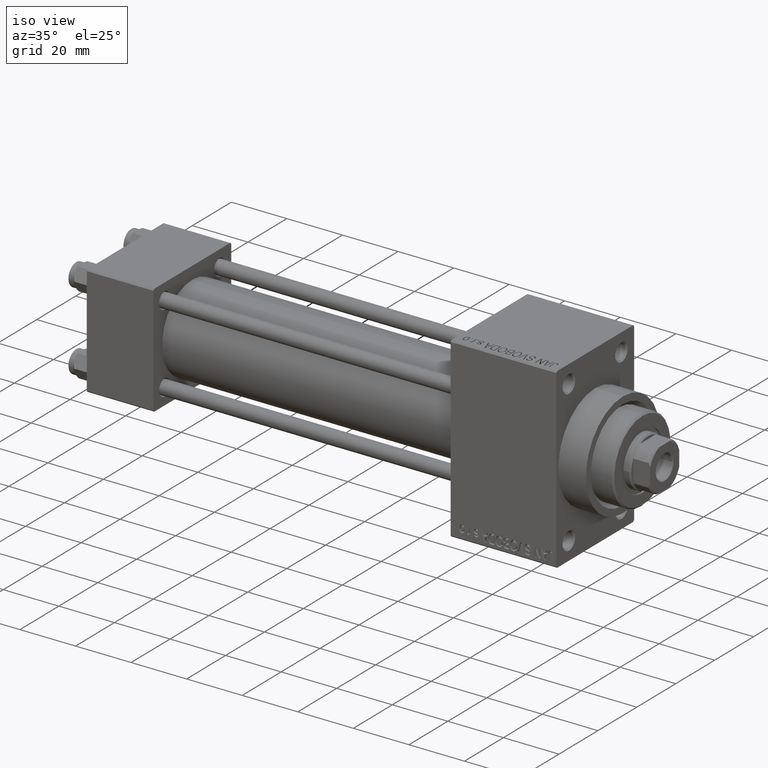
[diagram: clean part render]
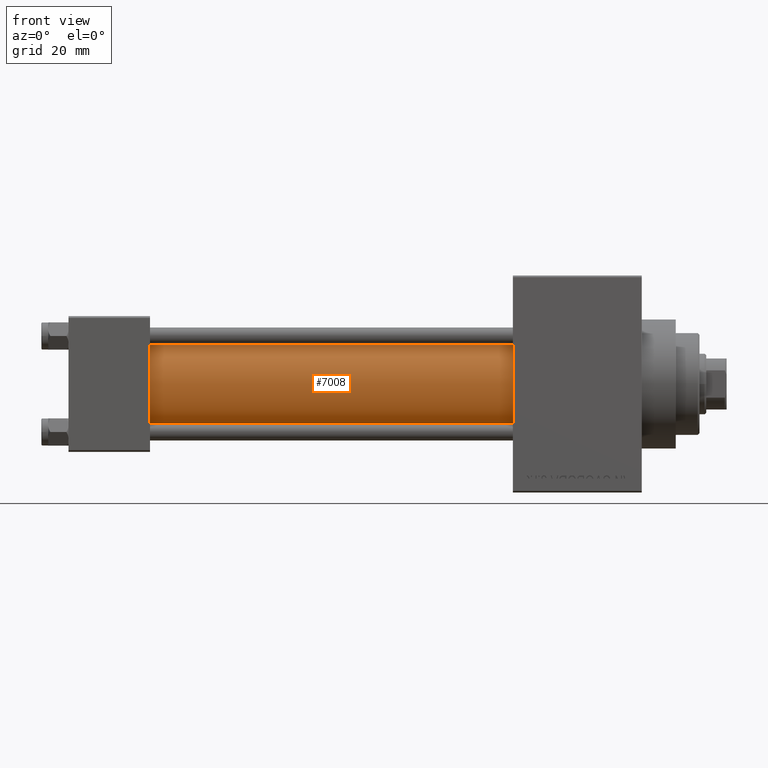
[diagram: tour spotlight — one face highlighted and labeled with its STEP entity id]
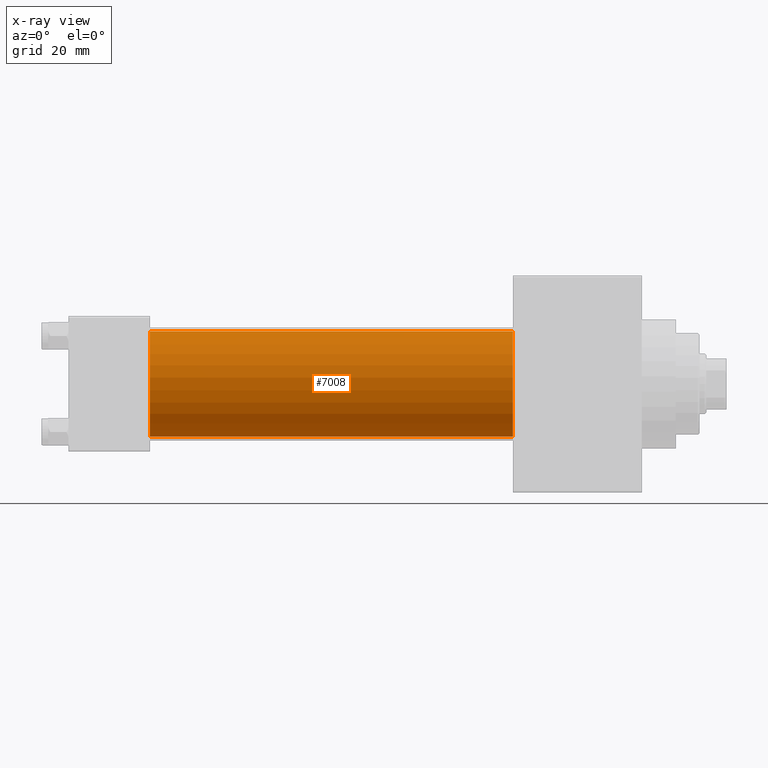
[diagram: x-ray of the same camera — body ghosted, this tour face saturated]
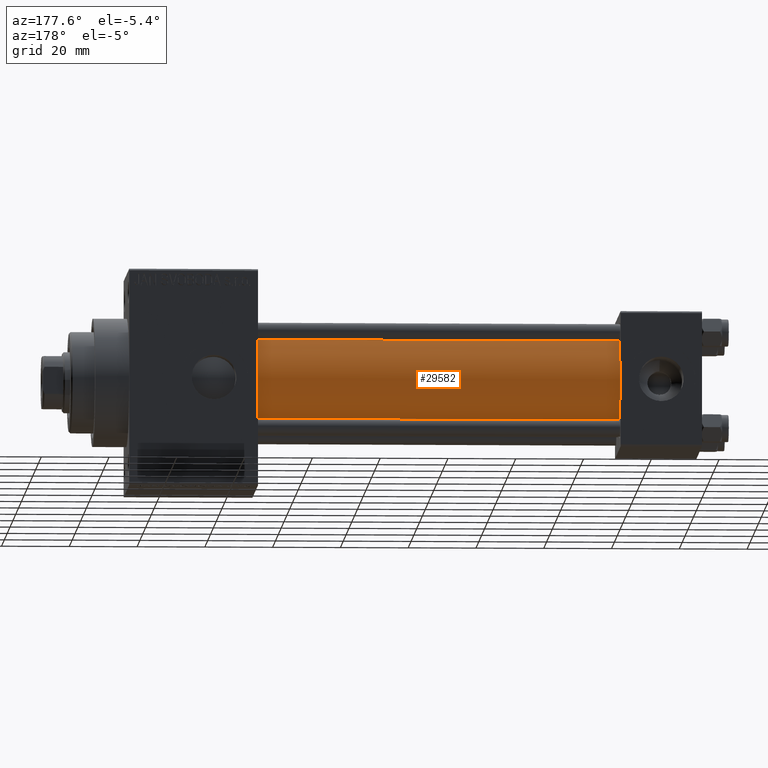
[diagram: tour spotlight — one face highlighted and labeled with its STEP entity id]
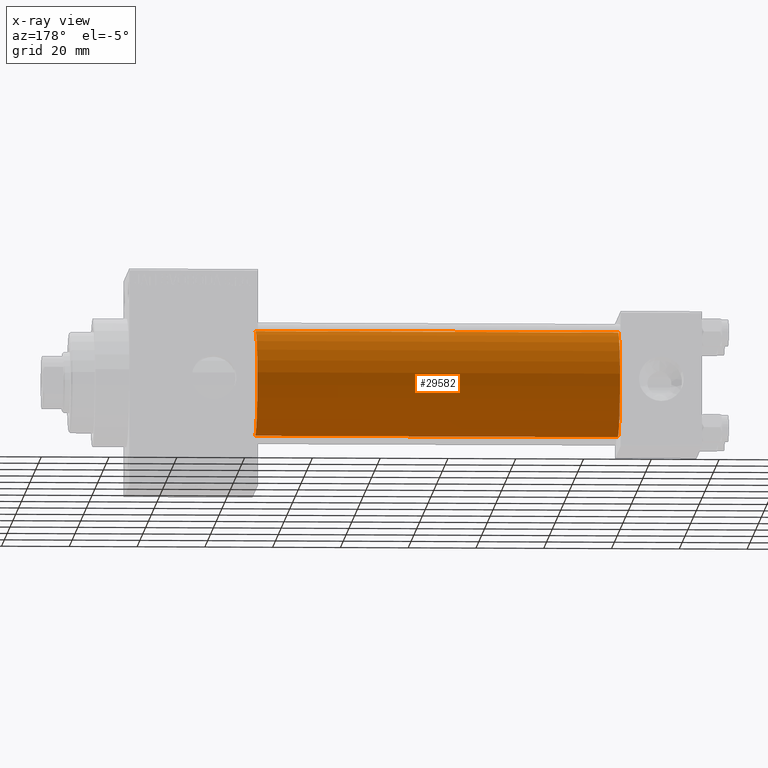
[diagram: x-ray of the same camera — body ghosted, this tour face saturated]
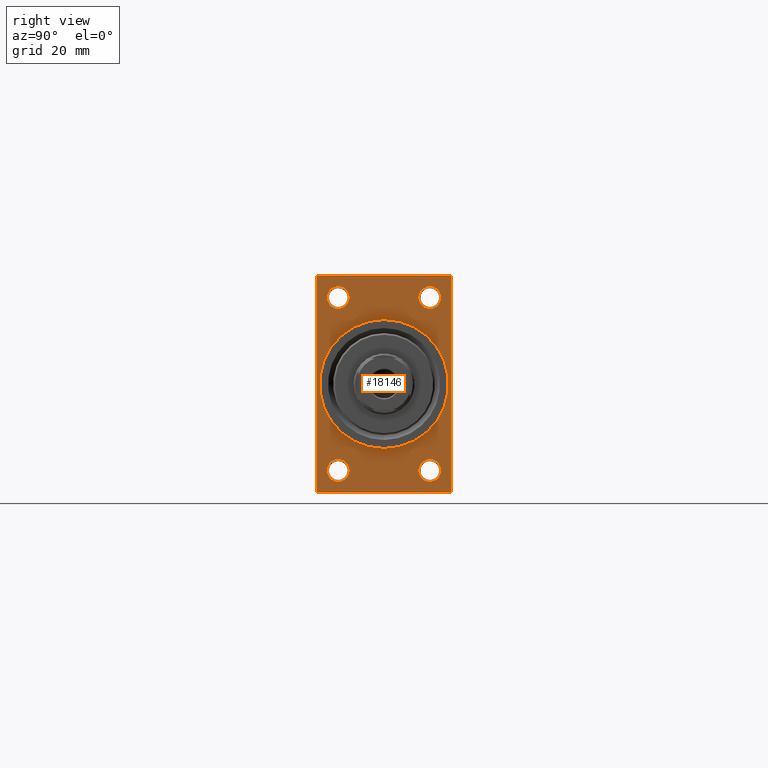
[diagram: tour spotlight — one face highlighted and labeled with its STEP entity id]
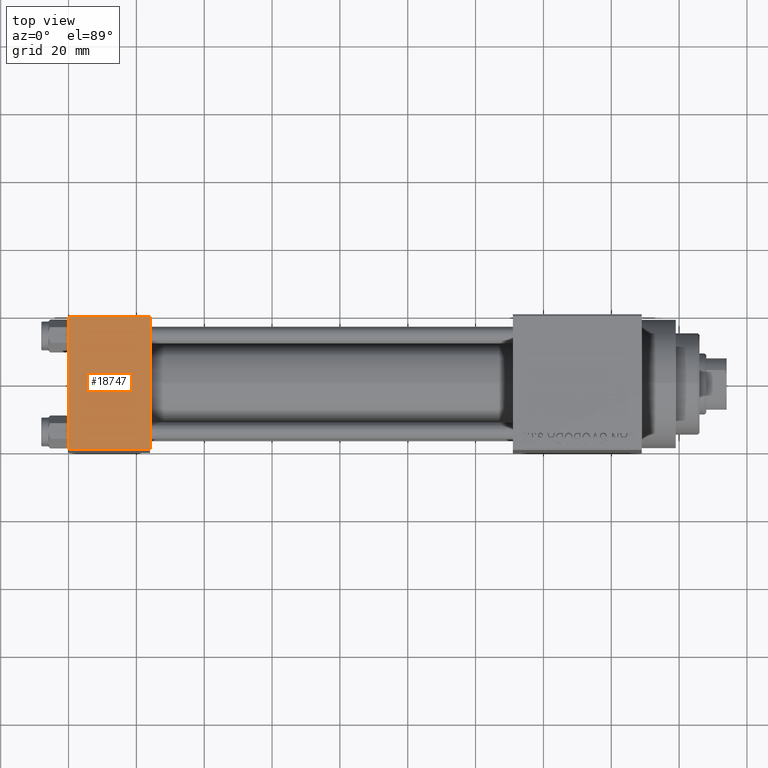
[diagram: tour spotlight — one face highlighted and labeled with its STEP entity id]
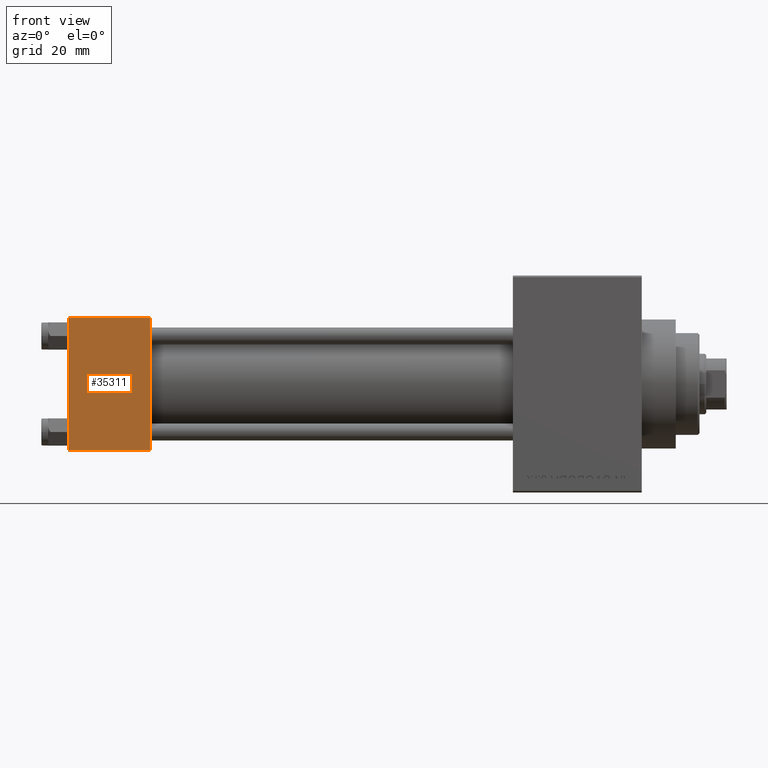
[diagram: tour spotlight — one face highlighted and labeled with its STEP entity id]
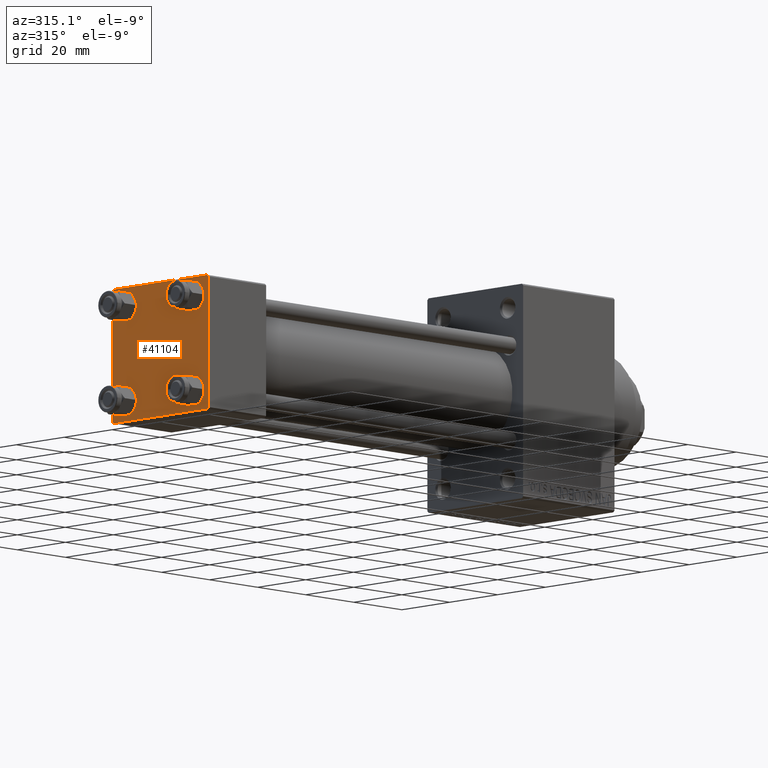
[diagram: tour spotlight — one face highlighted and labeled with its STEP entity id]
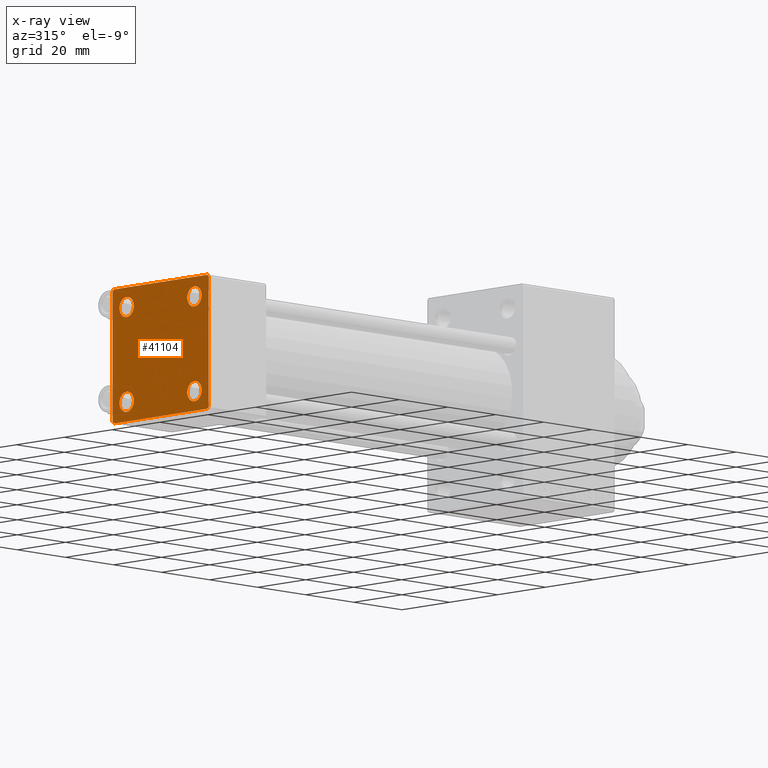
[diagram: x-ray of the same camera — body ghosted, this tour face saturated]
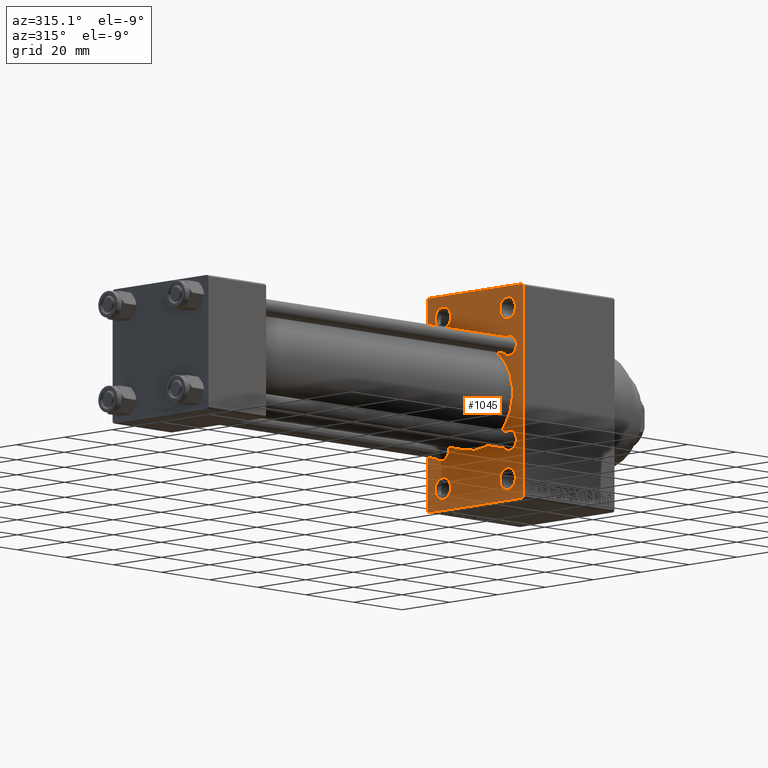
[diagram: tour spotlight — one face highlighted and labeled with its STEP entity id]
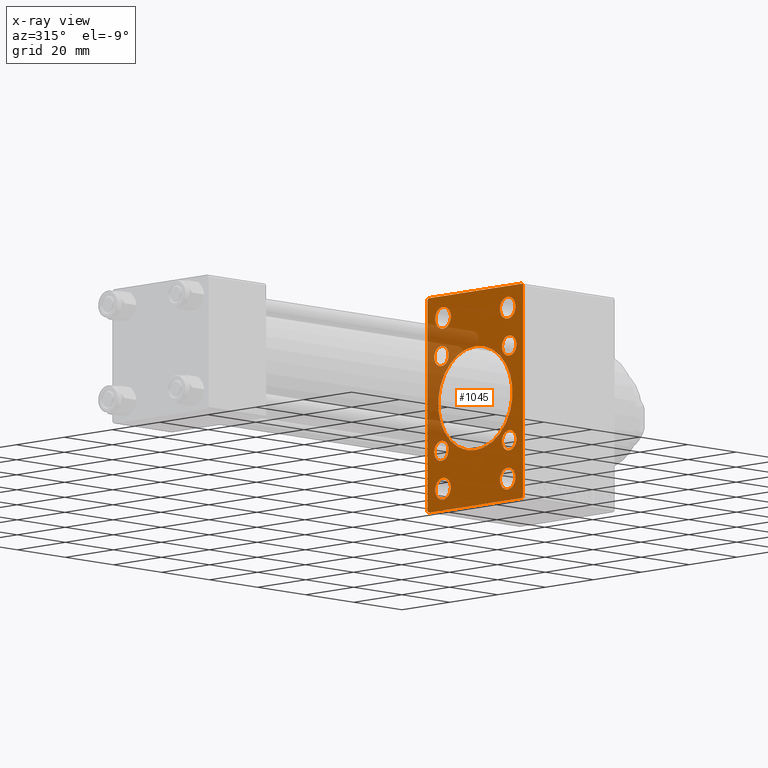
[diagram: x-ray of the same camera — body ghosted, this tour face saturated]
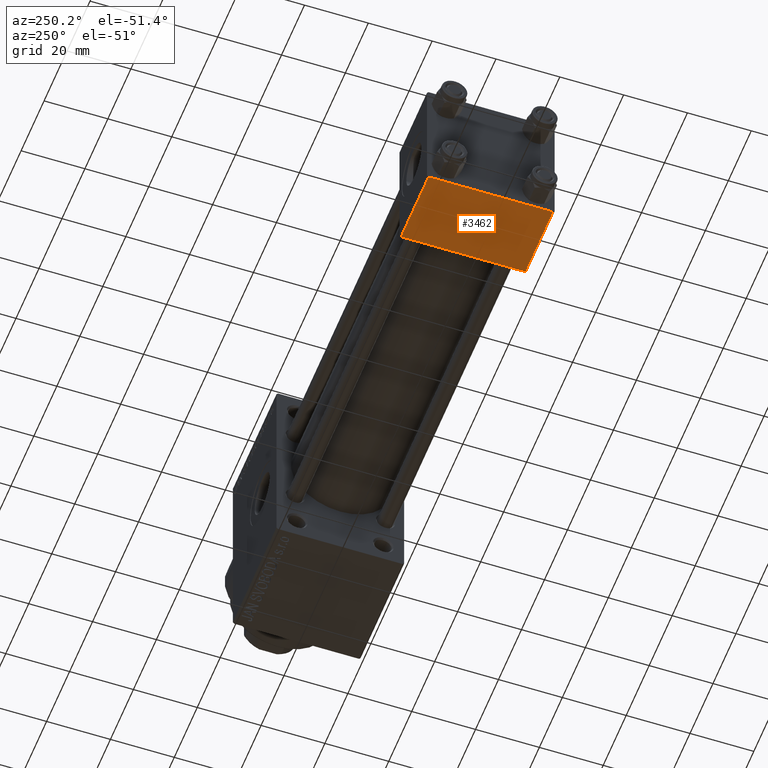
[diagram: tour spotlight — one face highlighted and labeled with its STEP entity id]
A machine part: a face-by-face anatomy tour. The part has 1102 B-rep faces; the first image is the clean iso view, then the 8 largest visible faces are spotlighted one at a time (largest first), each with its STEP entity span.

Face 1 — front view, entity #7008. An x-ray twin of the same camera follows (body ghosted, this face saturated) — the face is partly hidden behind the body. In plain terms, the highlighted cylindrical surface (partial cylindrical patch) has radius 15.5 mm, axis along (-1, -0, -0).
Definition (entity closure, byte-faithful):
#2064 = AXIS2_PLACEMENT_3D ( 'NONE', #17371, #31868, #21160 ) ;
#2175 = DIRECTION ( 'NONE',  ( -1.000000000000000000, -0.000000000000000000, -0.000000000000000000 ) ) ;
#2415 = LINE ( 'NONE', #31455, #40634 ) ;
#4716 = AXIS2_PLACEMENT_3D ( 'NONE', #15027, #29519, #29284 ) ;
#5131 = DIRECTION ( 'NONE',  ( 0.000000000000000000, 0.000000000000000000, -1.000000000000000000 ) ) ;
#5719 = ORIENTED_EDGE ( 'NONE', *, *, #15234, .T. ) ;
#7008 = ADVANCED_FACE ( 'NONE', ( #25729 ), #28805, .T. ) ;
#9681 = CARTESIAN_POINT ( 'NONE',  ( 23.99999999999999289, -2.602085213965210642E-15, 15.50000000000000000 ) ) ;
#11117 = EDGE_CURVE ( 'NONE', #28413, #19053, #34518, .T. ) ;
#13981 = AXIS2_PLACEMENT_3D ( 'NONE', #44900, #44665, #5131 ) ;
#15027 = CARTESIAN_POINT ( 'NONE',  ( 131.0000000000000000, -2.602085213965210642E-15, 0.000000000000000000 ) ) ;
#15234 = EDGE_CURVE ( 'NONE', #28413, #45639, #2415, .T. ) ;
#17371 = CARTESIAN_POINT ( 'NONE',  ( 23.99999999999999289, -2.602085213965210642E-15, 0.000000000000000000 ) ) ;
#17443 = ORIENTED_EDGE ( 'NONE', *, *, #26470, .T. ) ;
#17851 = ORIENTED_EDGE ( 'NONE', *, *, #34266, .F. ) ;
#19053 = VERTEX_POINT ( 'NONE', #32196 ) ;
#20748 = LINE ( 'NONE', #35275, #35570 ) ;
#21160 = DIRECTION ( 'NONE',  ( 0.000000000000000000, 0.000000000000000000, 1.000000000000000000 ) ) ;
#24348 = CARTESIAN_POINT ( 'NONE',  ( 131.0000000000000000, -2.602085213965210642E-15, 15.50000000000000000 ) ) ;
#25729 = FACE_OUTER_BOUND ( 'NONE', #46118, .T. ) ;
#26470 = EDGE_CURVE ( 'NONE', #45639, #38892, #32453, .T. ) ;
#28054 = ORIENTED_EDGE ( 'NONE', *, *, #11117, .F. ) ;
#28413 = VERTEX_POINT ( 'NONE', #24348 ) ;
#28805 = CYLINDRICAL_SURFACE ( 'NONE', #4716, 15.50000000000000000 ) ;
#29284 = DIRECTION ( 'NONE',  ( 0.000000000000000000, 0.000000000000000000, 1.000000000000000000 ) ) ;
#29519 = DIRECTION ( 'NONE',  ( -1.000000000000000000, -0.000000000000000000, -0.000000000000000000 ) ) ;
#31455 = CARTESIAN_POINT ( 'NONE',  ( 131.0000000000000000, -2.602085213965210642E-15, 15.50000000000000000 ) ) ;
#31868 = DIRECTION ( 'NONE',  ( 1.000000000000000000, 0.000000000000000000, 0.000000000000000000 ) ) ;
#31922 = DIRECTION ( 'NONE',  ( -1.000000000000000000, -0.000000000000000000, -0.000000000000000000 ) ) ;
#32196 = CARTESIAN_POINT ( 'NONE',  ( 131.0000000000000000, -7.038826752868131828E-16, -15.50000000000000000 ) ) ;
#32453 = CIRCLE ( 'NONE', #2064, 15.50000000000000000 ) ;
#34266 = EDGE_CURVE ( 'NONE', #19053, #38892, #20748, .T. ) ;
#34518 = CIRCLE ( 'NONE', #13981, 15.50000000000000000 ) ;
#35275 = CARTESIAN_POINT ( 'NONE',  ( 131.0000000000000000, -7.038826752868131828E-16, -15.50000000000000000 ) ) ;
#35570 = VECTOR ( 'NONE', #2175, 1000.000000000000000 ) ;
#38892 = VERTEX_POINT ( 'NONE', #39169 ) ;
#39169 = CARTESIAN_POINT ( 'NONE',  ( 23.99999999999999289, -7.038826752868131828E-16, -15.50000000000000000 ) ) ;
#40634 = VECTOR ( 'NONE', #31922, 1000.000000000000000 ) ;
#44665 = DIRECTION ( 'NONE',  ( 1.000000000000000000, 0.000000000000000000, 0.000000000000000000 ) ) ;
#44900 = CARTESIAN_POINT ( 'NONE',  ( 131.0000000000000000, -2.602085213965210642E-15, 0.000000000000000000 ) ) ;
#45639 = VERTEX_POINT ( 'NONE', #9681 ) ;
#46118 = EDGE_LOOP ( 'NONE', ( #17851, #28054, #5719, #17443 ) ) ;

Face 2 — auxiliary view, entity #29582. An x-ray twin of the same camera follows (body ghosted, this face saturated) — the face is partly hidden behind the body. In plain terms, the highlighted cylindrical surface (partial cylindrical patch) has radius 15.5 mm, axis along (-1, -0, -0).
Definition (entity closure, byte-faithful):
#2175 = DIRECTION ( 'NONE',  ( -1.000000000000000000, -0.000000000000000000, -0.000000000000000000 ) ) ;
#2415 = LINE ( 'NONE', #31455, #40634 ) ;
#4030 = ORIENTED_EDGE ( 'NONE', *, *, #34266, .T. ) ;
#4265 = EDGE_LOOP ( 'NONE', ( #7707, #4030, #27908, #43849 ) ) ;
#7659 = AXIS2_PLACEMENT_3D ( 'NONE', #31512, #46032, #13444 ) ;
#7707 = ORIENTED_EDGE ( 'NONE', *, *, #44081, .F. ) ;
#9681 = CARTESIAN_POINT ( 'NONE',  ( 23.99999999999999289, -2.602085213965210642E-15, 15.50000000000000000 ) ) ;
#13444 = DIRECTION ( 'NONE',  ( 0.000000000000000000, 0.000000000000000000, -1.000000000000000000 ) ) ;
#15234 = EDGE_CURVE ( 'NONE', #28413, #45639, #2415, .T. ) ;
#17946 = AXIS2_PLACEMENT_3D ( 'NONE', #43586, #32880, #39070 ) ;
#18288 = CIRCLE ( 'NONE', #34992, 15.50000000000000000 ) ;
#18372 = FACE_OUTER_BOUND ( 'NONE', #4265, .T. ) ;
#19053 = VERTEX_POINT ( 'NONE', #32196 ) ;
#20389 = DIRECTION ( 'NONE',  ( 0.000000000000000000, 0.000000000000000000, 1.000000000000000000 ) ) ;
#20748 = LINE ( 'NONE', #35275, #35570 ) ;
#20967 = CYLINDRICAL_SURFACE ( 'NONE', #17946, 15.50000000000000000 ) ;
#22873 = CIRCLE ( 'NONE', #7659, 15.50000000000000000 ) ;
#24348 = CARTESIAN_POINT ( 'NONE',  ( 131.0000000000000000, -2.602085213965210642E-15, 15.50000000000000000 ) ) ;
#26610 = DIRECTION ( 'NONE',  ( 1.000000000000000000, 0.000000000000000000, 0.000000000000000000 ) ) ;
#27908 = ORIENTED_EDGE ( 'NONE', *, *, #39840, .T. ) ;
#28413 = VERTEX_POINT ( 'NONE', #24348 ) ;
#29582 = ADVANCED_FACE ( 'NONE', ( #18372 ), #20967, .T. ) ;
#30401 = CARTESIAN_POINT ( 'NONE',  ( 23.99999999999999289, -2.602085213965210642E-15, 0.000000000000000000 ) ) ;
#31455 = CARTESIAN_POINT ( 'NONE',  ( 131.0000000000000000, -2.602085213965210642E-15, 15.50000000000000000 ) ) ;
#31512 = CARTESIAN_POINT ( 'NONE',  ( 131.0000000000000000, -2.602085213965210642E-15, 0.000000000000000000 ) ) ;
#31922 = DIRECTION ( 'NONE',  ( -1.000000000000000000, -0.000000000000000000, -0.000000000000000000 ) ) ;
#32196 = CARTESIAN_POINT ( 'NONE',  ( 131.0000000000000000, -7.038826752868131828E-16, -15.50000000000000000 ) ) ;
#32880 = DIRECTION ( 'NONE',  ( -1.000000000000000000, -0.000000000000000000, -0.000000000000000000 ) ) ;
#34266 = EDGE_CURVE ( 'NONE', #19053, #38892, #20748, .T. ) ;
#34992 = AXIS2_PLACEMENT_3D ( 'NONE', #30401, #26610, #20389 ) ;
#35275 = CARTESIAN_POINT ( 'NONE',  ( 131.0000000000000000, -7.038826752868131828E-16, -15.50000000000000000 ) ) ;
#35570 = VECTOR ( 'NONE', #2175, 1000.000000000000000 ) ;
#38892 = VERTEX_POINT ( 'NONE', #39169 ) ;
#39070 = DIRECTION ( 'NONE',  ( 0.000000000000000000, 0.000000000000000000, 1.000000000000000000 ) ) ;
#39169 = CARTESIAN_POINT ( 'NONE',  ( 23.99999999999999289, -7.038826752868131828E-16, -15.50000000000000000 ) ) ;
#39840 = EDGE_CURVE ( 'NONE', #38892, #45639, #18288, .T. ) ;
#40634 = VECTOR ( 'NONE', #31922, 1000.000000000000000 ) ;
#43586 = CARTESIAN_POINT ( 'NONE',  ( 131.0000000000000000, -2.602085213965210642E-15, 0.000000000000000000 ) ) ;
#43849 = ORIENTED_EDGE ( 'NONE', *, *, #15234, .F. ) ;
#44081 = EDGE_CURVE ( 'NONE', #19053, #28413, #22873, .T. ) ;
#45639 = VERTEX_POINT ( 'NONE', #9681 ) ;
#46032 = DIRECTION ( 'NONE',  ( 1.000000000000000000, 0.000000000000000000, 0.000000000000000000 ) ) ;

Face 3 — right view, entity #18146. In plain terms, the highlighted planar face has unit normal (-1, 0, 0).
Definition (entity closure, byte-faithful):
#277 = EDGE_CURVE ( 'NONE', #11372, #30386, #28001, .T. ) ;
#643 = CARTESIAN_POINT ( 'NONE',  ( 169.0000000000000000, -20.00000000000000000, 31.99999999999999289 ) ) ;
#1223 = VERTEX_POINT ( 'NONE', #8798 ) ;
#1423 = AXIS2_PLACEMENT_3D ( 'NONE', #22941, #12476, #26970 ) ;
#1881 = CARTESIAN_POINT ( 'NONE',  ( 169.0000000000000000, 13.49999999999999822, -25.50000000000000000 ) ) ;
#1886 = EDGE_CURVE ( 'NONE', #44608, #42659, #34217, .T. ) ;
#1909 = ORIENTED_EDGE ( 'NONE', *, *, #41677, .T. ) ;
#1968 = FACE_OUTER_BOUND ( 'NONE', #20372, .T. ) ;
#2071 = VECTOR ( 'NONE', #23424, 1000.000000000000000 ) ;
#2198 = DIRECTION ( 'NONE',  ( -1.000000000000000000, -0.000000000000000000, -0.000000000000000000 ) ) ;
#2494 = VERTEX_POINT ( 'NONE', #17287 ) ;
#2512 = DIRECTION ( 'NONE',  ( 0.000000000000000000, 0.000000000000000000, 1.000000000000000000 ) ) ;
#2711 = VERTEX_POINT ( 'NONE', #27001 ) ;
#2744 = CARTESIAN_POINT ( 'NONE',  ( 169.0000000000000000, -19.50000000000002842, -32.00000000000000000 ) ) ;
#4016 = AXIS2_PLACEMENT_3D ( 'NONE', #6004, #24798, #20295 ) ;
#4350 = CARTESIAN_POINT ( 'NONE',  ( 169.0000000000000000, -13.50000000000000533, -28.75000000000002487 ) ) ;
#4424 = ORIENTED_EDGE ( 'NONE', *, *, #277, .T. ) ;
#4779 = CIRCLE ( 'NONE', #4016, 3.250000000000030642 ) ;
#5175 = EDGE_CURVE ( 'NONE', #14091, #14615, #46443, .T. ) ;
#5197 = DIRECTION ( 'NONE',  ( 1.000000000000000000, 0.000000000000000000, 0.000000000000000000 ) ) ;
#5329 = CARTESIAN_POINT ( 'NONE',  ( 169.0000000000000000, -20.00000000000000000, 31.49999999999999289 ) ) ;
#6004 = CARTESIAN_POINT ( 'NONE',  ( 169.0000000000000000, -13.50000000000000533, -25.49999999999999645 ) ) ;
#7052 = VECTOR ( 'NONE', #17291, 1000.000000000000000 ) ;
#7496 = EDGE_CURVE ( 'NONE', #33615, #32844, #29938, .T. ) ;
#8068 = CARTESIAN_POINT ( 'NONE',  ( 169.0000000000000000, -13.50000000000000533, -22.24999999999996447 ) ) ;
#8682 = CARTESIAN_POINT ( 'NONE',  ( 169.0000000000000000, 20.00000000000000000, -31.50000000000000000 ) ) ;
#8798 = CARTESIAN_POINT ( 'NONE',  ( 169.0000000000000000, 13.49999999999999822, -28.75000000000002842 ) ) ;
#8974 = EDGE_CURVE ( 'NONE', #14615, #14091, #29091, .T. ) ;
#9106 = DIRECTION ( 'NONE',  ( 0.000000000000000000, 0.000000000000000000, -1.000000000000000000 ) ) ;
#9183 = EDGE_CURVE ( 'NONE', #11560, #40231, #35370, .T. ) ;
#9685 = DIRECTION ( 'NONE',  ( -1.000000000000000000, -0.000000000000000000, -0.000000000000000000 ) ) ;
#9713 = CARTESIAN_POINT ( 'NONE',  ( 169.0000000000000000, 0.000000000000000000, 0.000000000000000000 ) ) ;
#11063 = CARTESIAN_POINT ( 'NONE',  ( 169.0000000000000000, 19.50000000000000000, 32.00000000000000000 ) ) ;
#11107 = VECTOR ( 'NONE', #42769, 1000.000000000000000 ) ;
#11149 = CARTESIAN_POINT ( 'NONE',  ( 169.0000000000000000, 20.00000000000000000, 31.50000000000000000 ) ) ;
#11329 = CIRCLE ( 'NONE', #1423, 3.250000000000030642 ) ;
#11372 = VERTEX_POINT ( 'NONE', #11063 ) ;
#11560 = VERTEX_POINT ( 'NONE', #33425 ) ;
#11809 = ORIENTED_EDGE ( 'NONE', *, *, #9183, .T. ) ;
#12307 = EDGE_CURVE ( 'NONE', #40641, #29270, #4779, .T. ) ;
#12446 = CARTESIAN_POINT ( 'NONE',  ( 169.0000000000000000, 19.50000000000000000, 32.00000000000000000 ) ) ;
#12476 = DIRECTION ( 'NONE',  ( -1.000000000000000000, -0.000000000000000000, -0.000000000000000000 ) ) ;
#13180 = FACE_BOUND ( 'NONE', #32068, .T. ) ;
#13362 = LINE ( 'NONE', #12446, #39965 ) ;
#13745 = CARTESIAN_POINT ( 'NONE',  ( 169.0000000000000000, 20.00000000000000000, 32.00000000000000000 ) ) ;
#14091 = VERTEX_POINT ( 'NONE', #42686 ) ;
#14138 = CARTESIAN_POINT ( 'NONE',  ( 169.0000000000000000, -19.49999999999997158, 31.99999999999999289 ) ) ;
#14165 = CIRCLE ( 'NONE', #43797, 19.00000000000000000 ) ;
#14243 = DIRECTION ( 'NONE',  ( 0.000000000000000000, 0.000000000000000000, -1.000000000000000000 ) ) ;
#14615 = VERTEX_POINT ( 'NONE', #44943 ) ;
#15981 = AXIS2_PLACEMENT_3D ( 'NONE', #18342, #2198, #36430 ) ;
#16022 = CARTESIAN_POINT ( 'NONE',  ( 169.0000000000000000, 20.00000000000000000, 32.00000000000000000 ) ) ;
#16525 = LINE ( 'NONE', #5329, #2071 ) ;
#16536 = DIRECTION ( 'NONE',  ( 0.000000000000000000, 0.000000000000000000, 1.000000000000000000 ) ) ;
#17114 = DIRECTION ( 'NONE',  ( -1.000000000000000000, -0.000000000000000000, -0.000000000000000000 ) ) ;
#17268 = CIRCLE ( 'NONE', #36267, 19.00000000000000000 ) ;
#17287 = CARTESIAN_POINT ( 'NONE',  ( 169.0000000000000000, 0.000000000000000000, 19.00000000000000000 ) ) ;
#17291 = DIRECTION ( 'NONE',  ( 0.000000000000000000, 0.7071067811865328068, -0.7071067811865622277 ) ) ;
#17495 = ORIENTED_EDGE ( 'NONE', *, *, #35815, .T. ) ;
#18146 = ADVANCED_FACE ( 'NONE', ( #27892, #34833, #38190, #13180, #45306, #1968 ), #37960, .F. ) ;
#18342 = CARTESIAN_POINT ( 'NONE',  ( 169.0000000000000000, 13.49999999999999822, 25.50000000000000355 ) ) ;
#18688 = CARTESIAN_POINT ( 'NONE',  ( 169.0000000000000000, 2.326828918379970970E-15, -19.00000000000000000 ) ) ;
#18760 = VERTEX_POINT ( 'NONE', #36795 ) ;
#18823 = ORIENTED_EDGE ( 'NONE', *, *, #5175, .T. ) ;
#19002 = CARTESIAN_POINT ( 'NONE',  ( 169.0000000000000000, -13.50000000000000533, -25.49999999999999645 ) ) ;
#19227 = EDGE_CURVE ( 'NONE', #30494, #11372, #13362, .T. ) ;
#20221 = VERTEX_POINT ( 'NONE', #18688 ) ;
#20235 = ORIENTED_EDGE ( 'NONE', *, *, #36361, .T. ) ;
#20295 = DIRECTION ( 'NONE',  ( 0.000000000000000000, 0.000000000000000000, 1.000000000000000000 ) ) ;
#20307 = LINE ( 'NONE', #24809, #34007 ) ;
#20372 = EDGE_LOOP ( 'NONE', ( #36363, #11809, #28309, #43612, #27376, #44642, #4424, #37038 ) ) ;
#20778 = DIRECTION ( 'NONE',  ( 0.000000000000000000, -1.000000000000000000, 0.000000000000000000 ) ) ;
#20943 = ORIENTED_EDGE ( 'NONE', *, *, #26524, .T. ) ;
#21615 = DIRECTION ( 'NONE',  ( 1.000000000000000000, 0.000000000000000000, 0.000000000000000000 ) ) ;
#21793 = ORIENTED_EDGE ( 'NONE', *, *, #12307, .T. ) ;
#21817 = CIRCLE ( 'NONE', #37813, 3.250000000000030642 ) ;
#22770 = EDGE_CURVE ( 'NONE', #2711, #11560, #44448, .T. ) ;
#22941 = CARTESIAN_POINT ( 'NONE',  ( 169.0000000000000000, 13.49999999999999822, -25.50000000000000000 ) ) ;
#23094 = EDGE_CURVE ( 'NONE', #30386, #2711, #16525, .T. ) ;
#23129 = ORIENTED_EDGE ( 'NONE', *, *, #8974, .T. ) ;
#23232 = EDGE_CURVE ( 'NONE', #33615, #40231, #20307, .T. ) ;
#23424 = DIRECTION ( 'NONE',  ( -0.000000000000000000, -0.7071067811865672237, -0.7071067811865279218 ) ) ;
#24104 = DIRECTION ( 'NONE',  ( -0.000000000000000000, 0.000000000000000000, 1.000000000000000000 ) ) ;
#24798 = DIRECTION ( 'NONE',  ( -1.000000000000000000, -0.000000000000000000, -0.000000000000000000 ) ) ;
#24809 = CARTESIAN_POINT ( 'NONE',  ( 169.0000000000000000, 20.00000000000000000, -32.00000000000000000 ) ) ;
#24880 = ORIENTED_EDGE ( 'NONE', *, *, #1886, .T. ) ;
#25966 = AXIS2_PLACEMENT_3D ( 'NONE', #19002, #40660, #16536 ) ;
#26490 = LINE ( 'NONE', #16022, #32025 ) ;
#26524 = EDGE_CURVE ( 'NONE', #42659, #44608, #21817, .T. ) ;
#26646 = EDGE_CURVE ( 'NONE', #2494, #20221, #17268, .T. ) ;
#26970 = DIRECTION ( 'NONE',  ( 0.000000000000000000, 0.000000000000000000, 1.000000000000000000 ) ) ;
#27001 = CARTESIAN_POINT ( 'NONE',  ( 169.0000000000000000, -20.00000000000000000, 31.49999999999999289 ) ) ;
#27376 = ORIENTED_EDGE ( 'NONE', *, *, #42165, .F. ) ;
#27813 = CARTESIAN_POINT ( 'NONE',  ( 169.0000000000000000, -13.50000000000000178, 25.50000000000000355 ) ) ;
#27849 = DIRECTION ( 'NONE',  ( 0.000000000000000000, -0.7071067811865474617, 0.7071067811865474617 ) ) ;
#27892 = FACE_BOUND ( 'NONE', #41801, .T. ) ;
#28001 = LINE ( 'NONE', #13745, #11107 ) ;
#28309 = ORIENTED_EDGE ( 'NONE', *, *, #23232, .F. ) ;
#28503 = CARTESIAN_POINT ( 'NONE',  ( 169.0000000000000000, 0.000000000000000000, 0.000000000000000000 ) ) ;
#28523 = AXIS2_PLACEMENT_3D ( 'NONE', #38640, #34378, #24104 ) ;
#28986 = EDGE_CURVE ( 'NONE', #20221, #2494, #14165, .T. ) ;
#29091 = CIRCLE ( 'NONE', #41275, 3.250000000000030642 ) ;
#29270 = VERTEX_POINT ( 'NONE', #4350 ) ;
#29308 = ORIENTED_EDGE ( 'NONE', *, *, #26646, .F. ) ;
#29938 = LINE ( 'NONE', #37804, #42753 ) ;
#30195 = CARTESIAN_POINT ( 'NONE',  ( 169.0000000000000000, 13.49999999999999822, 25.50000000000000355 ) ) ;
#30386 = VERTEX_POINT ( 'NONE', #14138 ) ;
#30494 = VERTEX_POINT ( 'NONE', #11149 ) ;
#31401 = DIRECTION ( 'NONE',  ( -1.000000000000000000, -0.000000000000000000, -0.000000000000000000 ) ) ;
#31991 = EDGE_LOOP ( 'NONE', ( #17495, #20235 ) ) ;
#32025 = VECTOR ( 'NONE', #9106, 1000.000000000000000 ) ;
#32068 = EDGE_LOOP ( 'NONE', ( #24880, #20943 ) ) ;
#32622 = AXIS2_PLACEMENT_3D ( 'NONE', #1881, #17114, #38097 ) ;
#32844 = VERTEX_POINT ( 'NONE', #8682 ) ;
#33034 = DIRECTION ( 'NONE',  ( 0.000000000000000000, 0.000000000000000000, -1.000000000000000000 ) ) ;
#33425 = CARTESIAN_POINT ( 'NONE',  ( 169.0000000000000000, -20.00000000000000000, -31.50000000000000711 ) ) ;
#33530 = CARTESIAN_POINT ( 'NONE',  ( 169.0000000000000000, 13.49999999999999822, 28.75000000000003553 ) ) ;
#33615 = VERTEX_POINT ( 'NONE', #42287 ) ;
#33789 = DIRECTION ( 'NONE',  ( -1.000000000000000000, -0.000000000000000000, -0.000000000000000000 ) ) ;
#34007 = VECTOR ( 'NONE', #20778, 1000.000000000000000 ) ;
#34217 = CIRCLE ( 'NONE', #15981, 3.250000000000030642 ) ;
#34378 = DIRECTION ( 'NONE',  ( -1.000000000000000000, 0.000000000000000000, -0.000000000000000000 ) ) ;
#34713 = DIRECTION ( 'NONE',  ( 0.000000000000000000, 0.000000000000000000, -1.000000000000000000 ) ) ;
#34833 = FACE_BOUND ( 'NONE', #36052, .T. ) ;
#35142 = CARTESIAN_POINT ( 'NONE',  ( 169.0000000000000000, -13.50000000000000178, 25.50000000000000355 ) ) ;
#35185 = CARTESIAN_POINT ( 'NONE',  ( 169.0000000000000000, 13.49999999999999822, 22.24999999999997513 ) ) ;
#35370 = LINE ( 'NONE', #2744, #7052 ) ;
#35512 = VECTOR ( 'NONE', #33034, 1000.000000000000000 ) ;
#35798 = AXIS2_PLACEMENT_3D ( 'NONE', #27813, #31401, #45919 ) ;
#35815 = EDGE_CURVE ( 'NONE', #1223, #18760, #11329, .T. ) ;
#36052 = EDGE_LOOP ( 'NONE', ( #1909, #21793 ) ) ;
#36267 = AXIS2_PLACEMENT_3D ( 'NONE', #9713, #5197, #34713 ) ;
#36361 = EDGE_CURVE ( 'NONE', #18760, #1223, #42485, .T. ) ;
#36363 = ORIENTED_EDGE ( 'NONE', *, *, #22770, .T. ) ;
#36430 = DIRECTION ( 'NONE',  ( 0.000000000000000000, 0.000000000000000000, 1.000000000000000000 ) ) ;
#36795 = CARTESIAN_POINT ( 'NONE',  ( 169.0000000000000000, 13.49999999999999822, -22.24999999999996803 ) ) ;
#37038 = ORIENTED_EDGE ( 'NONE', *, *, #23094, .T. ) ;
#37804 = CARTESIAN_POINT ( 'NONE',  ( 169.0000000000000000, 20.00000000000000000, -31.50000000000000000 ) ) ;
#37813 = AXIS2_PLACEMENT_3D ( 'NONE', #30195, #33789, #40691 ) ;
#37960 = PLANE ( 'NONE',  #28523 ) ;
#38097 = DIRECTION ( 'NONE',  ( 0.000000000000000000, 0.000000000000000000, 1.000000000000000000 ) ) ;
#38190 = FACE_BOUND ( 'NONE', #31991, .T. ) ;
#38640 = CARTESIAN_POINT ( 'NONE',  ( 169.0000000000000000, 0.000000000000000000, 0.000000000000000000 ) ) ;
#39394 = ORIENTED_EDGE ( 'NONE', *, *, #28986, .F. ) ;
#39965 = VECTOR ( 'NONE', #27849, 1000.000000000000114 ) ;
#40231 = VERTEX_POINT ( 'NONE', #46726 ) ;
#40641 = VERTEX_POINT ( 'NONE', #8068 ) ;
#40645 = EDGE_LOOP ( 'NONE', ( #29308, #39394 ) ) ;
#40660 = DIRECTION ( 'NONE',  ( -1.000000000000000000, -0.000000000000000000, -0.000000000000000000 ) ) ;
#40666 = DIRECTION ( 'NONE',  ( -0.000000000000000000, 0.7071067811865474617, 0.7071067811865474617 ) ) ;
#40691 = DIRECTION ( 'NONE',  ( 0.000000000000000000, 0.000000000000000000, 1.000000000000000000 ) ) ;
#41275 = AXIS2_PLACEMENT_3D ( 'NONE', #35142, #9685, #2512 ) ;
#41677 = EDGE_CURVE ( 'NONE', #29270, #40641, #46450, .T. ) ;
#41801 = EDGE_LOOP ( 'NONE', ( #18823, #23129 ) ) ;
#42165 = EDGE_CURVE ( 'NONE', #30494, #32844, #26490, .T. ) ;
#42287 = CARTESIAN_POINT ( 'NONE',  ( 169.0000000000000000, 19.50000000000000000, -32.00000000000000000 ) ) ;
#42485 = CIRCLE ( 'NONE', #32622, 3.250000000000030642 ) ;
#42659 = VERTEX_POINT ( 'NONE', #33530 ) ;
#42686 = CARTESIAN_POINT ( 'NONE',  ( 169.0000000000000000, -13.50000000000000178, 22.24999999999997158 ) ) ;
#42753 = VECTOR ( 'NONE', #40666, 1000.000000000000114 ) ;
#42769 = DIRECTION ( 'NONE',  ( 0.000000000000000000, -1.000000000000000000, -1.734723475976807094E-16 ) ) ;
#43612 = ORIENTED_EDGE ( 'NONE', *, *, #7496, .T. ) ;
#43797 = AXIS2_PLACEMENT_3D ( 'NONE', #28503, #21615, #14243 ) ;
#44448 = LINE ( 'NONE', #643, #35512 ) ;
#44608 = VERTEX_POINT ( 'NONE', #35185 ) ;
#44642 = ORIENTED_EDGE ( 'NONE', *, *, #19227, .T. ) ;
#44943 = CARTESIAN_POINT ( 'NONE',  ( 169.0000000000000000, -13.50000000000000178, 28.75000000000003197 ) ) ;
#45306 = FACE_BOUND ( 'NONE', #40645, .T. ) ;
#45919 = DIRECTION ( 'NONE',  ( 0.000000000000000000, 0.000000000000000000, 1.000000000000000000 ) ) ;
#46443 = CIRCLE ( 'NONE', #35798, 3.250000000000030642 ) ;
#46450 = CIRCLE ( 'NONE', #25966, 3.250000000000030642 ) ;
#46726 = CARTESIAN_POINT ( 'NONE',  ( 169.0000000000000000, -19.50000000000002842, -32.00000000000000000 ) ) ;

Face 4 — top view, entity #18747. In plain terms, the highlighted planar face has unit normal (0, 0, -1).
Definition (entity closure, byte-faithful):
#1162 = AXIS2_PLACEMENT_3D ( 'NONE', #12499, #7990, #29627 ) ;
#1879 = CARTESIAN_POINT ( 'NONE',  ( 24.00000000000000000, -19.49999999999999289, 19.99999999999998934 ) ) ;
#2015 = LINE ( 'NONE', #31755, #31758 ) ;
#3435 = EDGE_CURVE ( 'NONE', #12938, #20708, #16425, .T. ) ;
#4253 = VECTOR ( 'NONE', #17496, 1000.000000000000000 ) ;
#5588 = CARTESIAN_POINT ( 'NONE',  ( 0.000000000000000000, -19.49999999999999289, 19.99999999999998934 ) ) ;
#5922 = DIRECTION ( 'NONE',  ( -1.000000000000000000, 0.000000000000000000, 0.000000000000000000 ) ) ;
#6160 = ORIENTED_EDGE ( 'NONE', *, *, #25602, .T. ) ;
#7990 = DIRECTION ( 'NONE',  ( 0.000000000000000000, 2.602085213965210149E-16, -1.000000000000000000 ) ) ;
#9596 = VERTEX_POINT ( 'NONE', #1879 ) ;
#12499 = CARTESIAN_POINT ( 'NONE',  ( 24.00000000000000000, 20.00000000000000000, 20.00000000000000000 ) ) ;
#12938 = VERTEX_POINT ( 'NONE', #15491 ) ;
#13394 = ORIENTED_EDGE ( 'NONE', *, *, #3435, .T. ) ;
#14907 = VERTEX_POINT ( 'NONE', #5588 ) ;
#15491 = CARTESIAN_POINT ( 'NONE',  ( 24.00000000000000000, 19.50000000000000000, 20.00000000000000000 ) ) ;
#16425 = LINE ( 'NONE', #26898, #28921 ) ;
#17496 = DIRECTION ( 'NONE',  ( 0.000000000000000000, -1.000000000000000000, -2.602085213965210149E-16 ) ) ;
#18747 = ADVANCED_FACE ( 'NONE', ( #26308 ), #44629, .F. ) ;
#20058 = EDGE_CURVE ( 'NONE', #12938, #9596, #20132, .T. ) ;
#20132 = LINE ( 'NONE', #35823, #4253 ) ;
#20708 = VERTEX_POINT ( 'NONE', #37323 ) ;
#20984 = ORIENTED_EDGE ( 'NONE', *, *, #20058, .F. ) ;
#21351 = VECTOR ( 'NONE', #27899, 1000.000000000000000 ) ;
#25602 = EDGE_CURVE ( 'NONE', #14907, #9596, #2015, .T. ) ;
#26308 = FACE_OUTER_BOUND ( 'NONE', #27193, .T. ) ;
#26898 = CARTESIAN_POINT ( 'NONE',  ( 0.000000000000000000, 19.50000000000000000, 20.00000000000000000 ) ) ;
#27193 = EDGE_LOOP ( 'NONE', ( #31698, #6160, #20984, #13394 ) ) ;
#27483 = DIRECTION ( 'NONE',  ( 1.000000000000000000, 0.000000000000000000, 0.000000000000000000 ) ) ;
#27899 = DIRECTION ( 'NONE',  ( 0.000000000000000000, -1.000000000000000000, -2.602085213965210149E-16 ) ) ;
#28921 = VECTOR ( 'NONE', #5922, 1000.000000000000000 ) ;
#29627 = DIRECTION ( 'NONE',  ( 0.000000000000000000, 1.000000000000000000, 2.602085213965210149E-16 ) ) ;
#31698 = ORIENTED_EDGE ( 'NONE', *, *, #45175, .T. ) ;
#31755 = CARTESIAN_POINT ( 'NONE',  ( 24.00000000000000000, -19.49999999999999289, 19.99999999999998934 ) ) ;
#31758 = VECTOR ( 'NONE', #27483, 1000.000000000000000 ) ;
#35823 = CARTESIAN_POINT ( 'NONE',  ( 24.00000000000000000, 20.00000000000000000, 20.00000000000000000 ) ) ;
#37323 = CARTESIAN_POINT ( 'NONE',  ( 0.000000000000000000, 19.50000000000000000, 20.00000000000000000 ) ) ;
#38874 = LINE ( 'NONE', #42433, #21351 ) ;
#42433 = CARTESIAN_POINT ( 'NONE',  ( 0.000000000000000000, 20.00000000000000000, 20.00000000000000000 ) ) ;
#44629 = PLANE ( 'NONE',  #1162 ) ;
#45175 = EDGE_CURVE ( 'NONE', #20708, #14907, #38874, .T. ) ;

Face 5 — front view, entity #35311. In plain terms, the highlighted planar face has unit normal (0, 1, 0).
Definition (entity closure, byte-faithful):
#825 = DIRECTION ( 'NONE',  ( -1.000000000000000000, 0.000000000000000000, 0.000000000000000000 ) ) ;
#950 = ORIENTED_EDGE ( 'NONE', *, *, #21630, .T. ) ;
#1259 = LINE ( 'NONE', #29834, #5958 ) ;
#2806 = EDGE_CURVE ( 'NONE', #29908, #17370, #22505, .T. ) ;
#3054 = DIRECTION ( 'NONE',  ( 0.000000000000000000, -8.673617379884036705E-17, 1.000000000000000000 ) ) ;
#4342 = ORIENTED_EDGE ( 'NONE', *, *, #2806, .T. ) ;
#5066 = DIRECTION ( 'NONE',  ( 0.000000000000000000, 8.673617379884036705E-17, -1.000000000000000000 ) ) ;
#5625 = LINE ( 'NONE', #34904, #14212 ) ;
#5958 = VECTOR ( 'NONE', #5066, 1000.000000000000000 ) ;
#6621 = CARTESIAN_POINT ( 'NONE',  ( 24.00000000000000000, -20.00000000000000355, 19.49999999999998224 ) ) ;
#11181 = DIRECTION ( 'NONE',  ( -0.000000000000000000, 1.000000000000000000, 8.673617379884036705E-17 ) ) ;
#12026 = VECTOR ( 'NONE', #21302, 1000.000000000000000 ) ;
#14212 = VECTOR ( 'NONE', #16359, 1000.000000000000000 ) ;
#15437 = EDGE_LOOP ( 'NONE', ( #16529, #950, #43587, #4342 ) ) ;
#16359 = DIRECTION ( 'NONE',  ( 1.000000000000000000, 0.000000000000000000, 0.000000000000000000 ) ) ;
#16443 = FACE_OUTER_BOUND ( 'NONE', #15437, .T. ) ;
#16529 = ORIENTED_EDGE ( 'NONE', *, *, #27888, .T. ) ;
#17370 = VERTEX_POINT ( 'NONE', #47117 ) ;
#18938 = CARTESIAN_POINT ( 'NONE',  ( 24.00000000000000000, -20.00000000000000355, 19.49999999999998224 ) ) ;
#21302 = DIRECTION ( 'NONE',  ( 0.000000000000000000, 8.673617379884036705E-17, -1.000000000000000000 ) ) ;
#21630 = EDGE_CURVE ( 'NONE', #41750, #26657, #5625, .T. ) ;
#22505 = LINE ( 'NONE', #18938, #37290 ) ;
#26657 = VERTEX_POINT ( 'NONE', #45414 ) ;
#27888 = EDGE_CURVE ( 'NONE', #17370, #41750, #43677, .T. ) ;
#29834 = CARTESIAN_POINT ( 'NONE',  ( 24.00000000000000000, -20.00000000000000355, 19.99999999999998934 ) ) ;
#29908 = VERTEX_POINT ( 'NONE', #6621 ) ;
#31772 = CARTESIAN_POINT ( 'NONE',  ( 0.000000000000000000, -20.00000000000000355, 19.99999999999998934 ) ) ;
#34531 = PLANE ( 'NONE',  #40960 ) ;
#34904 = CARTESIAN_POINT ( 'NONE',  ( 24.00000000000000000, -20.00000000000000000, -19.49999999999999645 ) ) ;
#34914 = EDGE_CURVE ( 'NONE', #29908, #26657, #1259, .T. ) ;
#35311 = ADVANCED_FACE ( 'NONE', ( #16443 ), #34531, .F. ) ;
#37290 = VECTOR ( 'NONE', #825, 1000.000000000000000 ) ;
#40895 = CARTESIAN_POINT ( 'NONE',  ( 0.000000000000000000, -20.00000000000000000, -19.49999999999999645 ) ) ;
#40960 = AXIS2_PLACEMENT_3D ( 'NONE', #42587, #11181, #3054 ) ;
#41750 = VERTEX_POINT ( 'NONE', #40895 ) ;
#42587 = CARTESIAN_POINT ( 'NONE',  ( 24.00000000000000000, -20.00000000000000355, 19.99999999999998934 ) ) ;
#43587 = ORIENTED_EDGE ( 'NONE', *, *, #34914, .F. ) ;
#43677 = LINE ( 'NONE', #31772, #12026 ) ;
#45414 = CARTESIAN_POINT ( 'NONE',  ( 24.00000000000000000, -20.00000000000000000, -19.49999999999999645 ) ) ;
#47117 = CARTESIAN_POINT ( 'NONE',  ( 0.000000000000000000, -20.00000000000000355, 19.49999999999998224 ) ) ;

Face 6 — auxiliary view, entity #41104. An x-ray twin of the same camera follows (body ghosted, this face saturated) — the face is partly hidden behind the body. In plain terms, the highlighted planar face has unit normal (-1, 0, 0).
Definition (entity closure, byte-faithful):
#766 = VECTOR ( 'NONE', #13258, 1000.000000000000000 ) ;
#2679 = DIRECTION ( 'NONE',  ( 0.000000000000000000, 0.000000000000000000, 1.000000000000000000 ) ) ;
#2700 = PLANE ( 'NONE',  #7684 ) ;
#2749 = CARTESIAN_POINT ( 'NONE',  ( 0.000000000000000000, 20.00000000000000000, -19.50000000000002132 ) ) ;
#2897 = EDGE_CURVE ( 'NONE', #17370, #14907, #31026, .T. ) ;
#2995 = EDGE_CURVE ( 'NONE', #4873, #25103, #28119, .T. ) ;
#4873 = VERTEX_POINT ( 'NONE', #14686 ) ;
#4974 = AXIS2_PLACEMENT_3D ( 'NONE', #47010, #36312, #14895 ) ;
#5544 = EDGE_LOOP ( 'NONE', ( #15307, #8038 ) ) ;
#5561 = VERTEX_POINT ( 'NONE', #32558 ) ;
#5588 = CARTESIAN_POINT ( 'NONE',  ( 0.000000000000000000, -19.49999999999999289, 19.99999999999998934 ) ) ;
#6255 = CARTESIAN_POINT ( 'NONE',  ( 0.000000000000000000, 14.14999999999999858, -14.15000000000000036 ) ) ;
#6327 = LINE ( 'NONE', #28448, #766 ) ;
#6584 = EDGE_LOOP ( 'NONE', ( #16236, #10313 ) ) ;
#6902 = EDGE_CURVE ( 'NONE', #5561, #28483, #7782, .T. ) ;
#6957 = EDGE_LOOP ( 'NONE', ( #45540, #26591, #33258, #33889, #33152, #23330, #13147, #31036 ) ) ;
#6992 = FACE_BOUND ( 'NONE', #12616, .T. ) ;
#7369 = VERTEX_POINT ( 'NONE', #11875 ) ;
#7467 = ORIENTED_EDGE ( 'NONE', *, *, #19723, .T. ) ;
#7555 = VERTEX_POINT ( 'NONE', #2749 ) ;
#7684 = AXIS2_PLACEMENT_3D ( 'NONE', #17473, #17245, #42694 ) ;
#7782 = CIRCLE ( 'NONE', #25220, 2.999999999999983569 ) ;
#8038 = ORIENTED_EDGE ( 'NONE', *, *, #6902, .T. ) ;
#8395 = AXIS2_PLACEMENT_3D ( 'NONE', #32688, #28861, #29332 ) ;
#9644 = CARTESIAN_POINT ( 'NONE',  ( 0.000000000000000000, 14.14999999999999858, -11.15000000000001812 ) ) ;
#9867 = FACE_BOUND ( 'NONE', #5544, .T. ) ;
#10313 = ORIENTED_EDGE ( 'NONE', *, *, #46192, .T. ) ;
#10576 = LINE ( 'NONE', #25079, #39571 ) ;
#11168 = CARTESIAN_POINT ( 'NONE',  ( 0.000000000000000000, -14.14999999999999503, 14.15000000000000391 ) ) ;
#11875 = CARTESIAN_POINT ( 'NONE',  ( 0.000000000000000000, 19.50000000000000711, -20.00000000000000711 ) ) ;
#12026 = VECTOR ( 'NONE', #21302, 1000.000000000000000 ) ;
#12616 = EDGE_LOOP ( 'NONE', ( #16550, #43315 ) ) ;
#13147 = ORIENTED_EDGE ( 'NONE', *, *, #45175, .F. ) ;
#13258 = DIRECTION ( 'NONE',  ( 0.000000000000000000, -0.7071067811865401342, 0.7071067811865549002 ) ) ;
#13440 = FACE_BOUND ( 'NONE', #6584, .T. ) ;
#14218 = DIRECTION ( 'NONE',  ( 0.000000000000000000, 0.000000000000000000, 1.000000000000000000 ) ) ;
#14252 = DIRECTION ( 'NONE',  ( 1.000000000000000000, 0.000000000000000000, 0.000000000000000000 ) ) ;
#14686 = CARTESIAN_POINT ( 'NONE',  ( 0.000000000000000000, -14.14999999999999503, 11.15000000000002345 ) ) ;
#14895 = DIRECTION ( 'NONE',  ( 0.000000000000000000, 0.000000000000000000, 1.000000000000000000 ) ) ;
#14907 = VERTEX_POINT ( 'NONE', #5588 ) ;
#15307 = ORIENTED_EDGE ( 'NONE', *, *, #18734, .T. ) ;
#15830 = CIRCLE ( 'NONE', #21889, 2.999999999999983569 ) ;
#16236 = ORIENTED_EDGE ( 'NONE', *, *, #38460, .T. ) ;
#16254 = DIRECTION ( 'NONE',  ( 1.000000000000000000, 0.000000000000000000, 0.000000000000000000 ) ) ;
#16550 = ORIENTED_EDGE ( 'NONE', *, *, #24782, .T. ) ;
#17087 = CARTESIAN_POINT ( 'NONE',  ( 0.000000000000000000, 14.14999999999999858, -14.15000000000000036 ) ) ;
#17245 = DIRECTION ( 'NONE',  ( -1.000000000000000000, 0.000000000000000000, -0.000000000000000000 ) ) ;
#17370 = VERTEX_POINT ( 'NONE', #47117 ) ;
#17473 = CARTESIAN_POINT ( 'NONE',  ( 0.000000000000000000, 0.000000000000000000, 0.000000000000000000 ) ) ;
#17898 = CARTESIAN_POINT ( 'NONE',  ( -0.000000000000000000, 19.75000000000013500, 19.74999999999986144 ) ) ;
#17941 = CARTESIAN_POINT ( 'NONE',  ( 0.000000000000000000, -14.14999999999999503, -17.15000000000000924 ) ) ;
#17999 = LINE ( 'NONE', #43220, #22089 ) ;
#18545 = DIRECTION ( 'NONE',  ( 0.000000000000000000, 0.000000000000000000, 1.000000000000000000 ) ) ;
#18734 = EDGE_CURVE ( 'NONE', #28483, #5561, #31555, .T. ) ;
#19055 = DIRECTION ( 'NONE',  ( 0.000000000000000000, 0.000000000000000000, 1.000000000000000000 ) ) ;
#19698 = EDGE_LOOP ( 'NONE', ( #7467, #37377 ) ) ;
#19723 = EDGE_CURVE ( 'NONE', #31000, #22871, #26324, .T. ) ;
#20142 = CARTESIAN_POINT ( 'NONE',  ( 0.000000000000000000, 14.14999999999999858, -17.14999999999998437 ) ) ;
#20708 = VERTEX_POINT ( 'NONE', #37323 ) ;
#21302 = DIRECTION ( 'NONE',  ( 0.000000000000000000, 8.673617379884036705E-17, -1.000000000000000000 ) ) ;
#21351 = VECTOR ( 'NONE', #27899, 1000.000000000000000 ) ;
#21889 = AXIS2_PLACEMENT_3D ( 'NONE', #11168, #14252, #18545 ) ;
#22024 = VERTEX_POINT ( 'NONE', #39818 ) ;
#22089 = VECTOR ( 'NONE', #45848, 1000.000000000000000 ) ;
#22380 = CARTESIAN_POINT ( 'NONE',  ( 0.000000000000000000, -14.14999999999999503, -14.15000000000000391 ) ) ;
#22871 = VERTEX_POINT ( 'NONE', #20142 ) ;
#23203 = CARTESIAN_POINT ( 'NONE',  ( 0.000000000000000000, 14.14999999999999858, 14.15000000000000036 ) ) ;
#23330 = ORIENTED_EDGE ( 'NONE', *, *, #2897, .T. ) ;
#24077 = VECTOR ( 'NONE', #38058, 1000.000000000000000 ) ;
#24122 = CARTESIAN_POINT ( 'NONE',  ( -0.000000000000000000, -19.74999999999992539, 19.75000000000006395 ) ) ;
#24312 = CIRCLE ( 'NONE', #47116, 3.000000000000004441 ) ;
#24782 = EDGE_CURVE ( 'NONE', #25103, #4873, #15830, .T. ) ;
#25015 = VERTEX_POINT ( 'NONE', #17941 ) ;
#25079 = CARTESIAN_POINT ( 'NONE',  ( -0.000000000000000000, 19.74999999999986855, -19.75000000000014211 ) ) ;
#25103 = VERTEX_POINT ( 'NONE', #32168 ) ;
#25220 = AXIS2_PLACEMENT_3D ( 'NONE', #23203, #34853, #38435 ) ;
#25517 = AXIS2_PLACEMENT_3D ( 'NONE', #17087, #32064, #14218 ) ;
#25531 = CARTESIAN_POINT ( 'NONE',  ( 0.000000000000000000, 14.14999999999999858, 17.14999999999998437 ) ) ;
#26123 = EDGE_CURVE ( 'NONE', #20708, #22024, #32660, .T. ) ;
#26324 = CIRCLE ( 'NONE', #25517, 2.999999999999983569 ) ;
#26591 = ORIENTED_EDGE ( 'NONE', *, *, #41085, .T. ) ;
#27888 = EDGE_CURVE ( 'NONE', #17370, #41750, #43677, .T. ) ;
#27899 = DIRECTION ( 'NONE',  ( 0.000000000000000000, -1.000000000000000000, -2.602085213965210149E-16 ) ) ;
#28119 = CIRCLE ( 'NONE', #8395, 2.999999999999983569 ) ;
#28441 = EDGE_CURVE ( 'NONE', #22871, #31000, #40929, .T. ) ;
#28448 = CARTESIAN_POINT ( 'NONE',  ( 0.000000000000000000, -19.75000000000020961, -19.74999999999979394 ) ) ;
#28483 = VERTEX_POINT ( 'NONE', #25531 ) ;
#28861 = DIRECTION ( 'NONE',  ( 1.000000000000000000, 0.000000000000000000, 0.000000000000000000 ) ) ;
#28885 = VECTOR ( 'NONE', #38883, 1000.000000000000114 ) ;
#29332 = DIRECTION ( 'NONE',  ( 0.000000000000000000, 0.000000000000000000, 1.000000000000000000 ) ) ;
#31000 = VERTEX_POINT ( 'NONE', #9644 ) ;
#31026 = LINE ( 'NONE', #24122, #28885 ) ;
#31036 = ORIENTED_EDGE ( 'NONE', *, *, #26123, .T. ) ;
#31393 = EDGE_CURVE ( 'NONE', #7369, #31926, #45633, .T. ) ;
#31555 = CIRCLE ( 'NONE', #4974, 2.999999999999983569 ) ;
#31772 = CARTESIAN_POINT ( 'NONE',  ( 0.000000000000000000, -20.00000000000000355, 19.99999999999998934 ) ) ;
#31926 = VERTEX_POINT ( 'NONE', #43660 ) ;
#32018 = CIRCLE ( 'NONE', #45709, 3.000000000000004441 ) ;
#32064 = DIRECTION ( 'NONE',  ( 1.000000000000000000, 0.000000000000000000, 0.000000000000000000 ) ) ;
#32164 = CARTESIAN_POINT ( 'NONE',  ( 0.000000000000000000, -14.14999999999999503, -11.15000000000000036 ) ) ;
#32168 = CARTESIAN_POINT ( 'NONE',  ( 0.000000000000000000, -14.14999999999999503, 17.14999999999998792 ) ) ;
#32558 = CARTESIAN_POINT ( 'NONE',  ( 0.000000000000000000, 14.14999999999999858, 11.15000000000001990 ) ) ;
#32660 = LINE ( 'NONE', #17898, #46881 ) ;
#32688 = CARTESIAN_POINT ( 'NONE',  ( 0.000000000000000000, -14.14999999999999503, 14.15000000000000391 ) ) ;
#33152 = ORIENTED_EDGE ( 'NONE', *, *, #27888, .F. ) ;
#33258 = ORIENTED_EDGE ( 'NONE', *, *, #31393, .T. ) ;
#33889 = ORIENTED_EDGE ( 'NONE', *, *, #39911, .T. ) ;
#34307 = VERTEX_POINT ( 'NONE', #32164 ) ;
#34568 = DIRECTION ( 'NONE',  ( 0.000000000000000000, 0.000000000000000000, 1.000000000000000000 ) ) ;
#34853 = DIRECTION ( 'NONE',  ( 1.000000000000000000, 0.000000000000000000, 0.000000000000000000 ) ) ;
#35307 = DIRECTION ( 'NONE',  ( 1.000000000000000000, 0.000000000000000000, 0.000000000000000000 ) ) ;
#35330 = FACE_OUTER_BOUND ( 'NONE', #6957, .T. ) ;
#36312 = DIRECTION ( 'NONE',  ( 1.000000000000000000, 0.000000000000000000, 0.000000000000000000 ) ) ;
#37151 = DIRECTION ( 'NONE',  ( 1.000000000000000000, 0.000000000000000000, 0.000000000000000000 ) ) ;
#37323 = CARTESIAN_POINT ( 'NONE',  ( 0.000000000000000000, 19.50000000000000000, 20.00000000000000000 ) ) ;
#37377 = ORIENTED_EDGE ( 'NONE', *, *, #28441, .T. ) ;
#38058 = DIRECTION ( 'NONE',  ( 0.000000000000000000, -1.000000000000000000, 1.734723475976807094E-16 ) ) ;
#38435 = DIRECTION ( 'NONE',  ( 0.000000000000000000, 0.000000000000000000, 1.000000000000000000 ) ) ;
#38460 = EDGE_CURVE ( 'NONE', #34307, #25015, #24312, .T. ) ;
#38874 = LINE ( 'NONE', #42433, #21351 ) ;
#38883 = DIRECTION ( 'NONE',  ( -0.000000000000000000, 0.7071067811865500152, 0.7071067811865451302 ) ) ;
#39378 = AXIS2_PLACEMENT_3D ( 'NONE', #6255, #35307, #2679 ) ;
#39571 = VECTOR ( 'NONE', #39605, 1000.000000000000000 ) ;
#39605 = DIRECTION ( 'NONE',  ( -0.000000000000000000, -0.7071067811865524577, -0.7071067811865426878 ) ) ;
#39818 = CARTESIAN_POINT ( 'NONE',  ( 0.000000000000000000, 20.00000000000000000, 19.49999999999999289 ) ) ;
#39911 = EDGE_CURVE ( 'NONE', #31926, #41750, #6327, .T. ) ;
#39995 = EDGE_CURVE ( 'NONE', #22024, #7555, #17999, .T. ) ;
#40895 = CARTESIAN_POINT ( 'NONE',  ( 0.000000000000000000, -20.00000000000000000, -19.49999999999999645 ) ) ;
#40929 = CIRCLE ( 'NONE', #39378, 2.999999999999983569 ) ;
#41085 = EDGE_CURVE ( 'NONE', #7555, #7369, #10576, .T. ) ;
#41104 = ADVANCED_FACE ( 'NONE', ( #6992, #13440, #42459, #9867, #35330 ), #2700, .T. ) ;
#41750 = VERTEX_POINT ( 'NONE', #40895 ) ;
#42433 = CARTESIAN_POINT ( 'NONE',  ( 0.000000000000000000, 20.00000000000000000, 20.00000000000000000 ) ) ;
#42459 = FACE_BOUND ( 'NONE', #19698, .T. ) ;
#42694 = DIRECTION ( 'NONE',  ( -0.000000000000000000, 0.000000000000000000, 1.000000000000000000 ) ) ;
#43122 = DIRECTION ( 'NONE',  ( 0.000000000000000000, 0.7071067811865425767, -0.7071067811865525687 ) ) ;
#43220 = CARTESIAN_POINT ( 'NONE',  ( 0.000000000000000000, 20.00000000000000000, 20.00000000000000000 ) ) ;
#43315 = ORIENTED_EDGE ( 'NONE', *, *, #2995, .T. ) ;
#43660 = CARTESIAN_POINT ( 'NONE',  ( 0.000000000000000000, -19.50000000000000711, -20.00000000000000000 ) ) ;
#43677 = LINE ( 'NONE', #31772, #12026 ) ;
#45175 = EDGE_CURVE ( 'NONE', #20708, #14907, #38874, .T. ) ;
#45408 = CARTESIAN_POINT ( 'NONE',  ( 0.000000000000000000, 20.00000000000000000, -20.00000000000000711 ) ) ;
#45540 = ORIENTED_EDGE ( 'NONE', *, *, #39995, .T. ) ;
#45633 = LINE ( 'NONE', #45408, #24077 ) ;
#45709 = AXIS2_PLACEMENT_3D ( 'NONE', #45962, #16254, #34568 ) ;
#45848 = DIRECTION ( 'NONE',  ( 0.000000000000000000, 0.000000000000000000, -1.000000000000000000 ) ) ;
#45962 = CARTESIAN_POINT ( 'NONE',  ( 0.000000000000000000, -14.14999999999999503, -14.15000000000000391 ) ) ;
#46192 = EDGE_CURVE ( 'NONE', #25015, #34307, #32018, .T. ) ;
#46881 = VECTOR ( 'NONE', #43122, 999.9999999999998863 ) ;
#47010 = CARTESIAN_POINT ( 'NONE',  ( 0.000000000000000000, 14.14999999999999858, 14.15000000000000036 ) ) ;
#47116 = AXIS2_PLACEMENT_3D ( 'NONE', #22380, #37151, #19055 ) ;
#47117 = CARTESIAN_POINT ( 'NONE',  ( 0.000000000000000000, -20.00000000000000355, 19.49999999999998224 ) ) ;

Face 7 — auxiliary view, entity #1045. An x-ray twin of the same camera follows (body ghosted, this face saturated) — the face is partly hidden behind the body. In plain terms, the highlighted planar face has unit normal (-1, 0, 0).
Definition (entity closure, byte-faithful):
#505 = CIRCLE ( 'NONE', #2028, 3.000000000000004441 ) ;
#1045 = ADVANCED_FACE ( 'NONE', ( #24510, #18091, #24976, #39499, #6412, #3308, #32607, #47118, #2831, #29018 ), #6888, .T. ) ;
#1636 = CIRCLE ( 'NONE', #28231, 3.249999999999947597 ) ;
#1688 = EDGE_CURVE ( 'NONE', #26677, #37581, #12178, .T. ) ;
#1855 = CARTESIAN_POINT ( 'NONE',  ( 131.0000000000000000, 13.49999999999999822, -28.74999999999994671 ) ) ;
#2028 = AXIS2_PLACEMENT_3D ( 'NONE', #33856, #11973, #23134 ) ;
#2065 = DIRECTION ( 'NONE',  ( 0.000000000000000000, 0.000000000000000000, 1.000000000000000000 ) ) ;
#2354 = AXIS2_PLACEMENT_3D ( 'NONE', #24058, #12442, #26939 ) ;
#2665 = CIRCLE ( 'NONE', #3420, 3.249999999999947597 ) ;
#2831 = FACE_BOUND ( 'NONE', #19348, .T. ) ;
#2854 = VERTEX_POINT ( 'NONE', #31725 ) ;
#3083 = AXIS2_PLACEMENT_3D ( 'NONE', #3295, #39483, #17834 ) ;
#3196 = VERTEX_POINT ( 'NONE', #14310 ) ;
#3286 = DIRECTION ( 'NONE',  ( 0.000000000000000000, 0.000000000000000000, 1.000000000000000000 ) ) ;
#3295 = CARTESIAN_POINT ( 'NONE',  ( 131.0000000000000000, -14.15000000000000036, 14.15000000000000036 ) ) ;
#3303 = VERTEX_POINT ( 'NONE', #19067 ) ;
#3308 = FACE_BOUND ( 'NONE', #6481, .T. ) ;
#3420 = AXIS2_PLACEMENT_3D ( 'NONE', #36912, #33974, #30385 ) ;
#3464 = DIRECTION ( 'NONE',  ( 0.000000000000000000, 0.000000000000000000, 1.000000000000000000 ) ) ;
#3835 = ORIENTED_EDGE ( 'NONE', *, *, #16961, .F. ) ;
#4539 = LINE ( 'NONE', #29529, #19488 ) ;
#4690 = EDGE_LOOP ( 'NONE', ( #39523, #29084 ) ) ;
#4941 = CARTESIAN_POINT ( 'NONE',  ( 131.0000000000000000, 25.75000000000000000, -25.75000000000000000 ) ) ;
#5131 = DIRECTION ( 'NONE',  ( 0.000000000000000000, 0.000000000000000000, -1.000000000000000000 ) ) ;
#5213 = DIRECTION ( 'NONE',  ( 1.000000000000000000, 0.000000000000000000, 0.000000000000000000 ) ) ;
#5230 = EDGE_CURVE ( 'NONE', #12875, #37952, #32014, .T. ) ;
#5515 = CARTESIAN_POINT ( 'NONE',  ( 131.0000000000000000, 13.49999999999999822, -22.25000000000004974 ) ) ;
#5770 = ORIENTED_EDGE ( 'NONE', *, *, #39753, .T. ) ;
#6049 = CARTESIAN_POINT ( 'NONE',  ( 131.0000000000000000, 14.15000000000000036, -17.15000000000000568 ) ) ;
#6190 = EDGE_CURVE ( 'NONE', #24107, #17601, #1636, .T. ) ;
#6253 = CARTESIAN_POINT ( 'NONE',  ( 131.0000000000000000, -19.50000000000002842, -32.00000000000000000 ) ) ;
#6334 = CARTESIAN_POINT ( 'NONE',  ( 131.0000000000000000, 13.49999999999999822, 25.50000000000000355 ) ) ;
#6373 = DIRECTION ( 'NONE',  ( 1.000000000000000000, 0.000000000000000000, 0.000000000000000000 ) ) ;
#6412 = FACE_BOUND ( 'NONE', #42190, .T. ) ;
#6481 = EDGE_LOOP ( 'NONE', ( #7025, #25748 ) ) ;
#6642 = DIRECTION ( 'NONE',  ( -1.000000000000000000, 0.000000000000000000, -0.000000000000000000 ) ) ;
#6781 = DIRECTION ( 'NONE',  ( 1.000000000000000000, 0.000000000000000000, 0.000000000000000000 ) ) ;
#6888 = PLANE ( 'NONE',  #42492 ) ;
#7025 = ORIENTED_EDGE ( 'NONE', *, *, #20970, .T. ) ;
#7659 = AXIS2_PLACEMENT_3D ( 'NONE', #31512, #46032, #13444 ) ;
#8020 = CARTESIAN_POINT ( 'NONE',  ( 131.0000000000000000, 19.50000000000000000, -32.00000000000000000 ) ) ;
#8537 = DIRECTION ( 'NONE',  ( -0.000000000000000000, -0.7071067811865474617, -0.7071067811865474617 ) ) ;
#8803 = DIRECTION ( 'NONE',  ( 1.000000000000000000, 0.000000000000000000, 0.000000000000000000 ) ) ;
#8890 = DIRECTION ( 'NONE',  ( 0.000000000000000000, 0.000000000000000000, 1.000000000000000000 ) ) ;
#8892 = CARTESIAN_POINT ( 'NONE',  ( 131.0000000000000000, -14.15000000000000036, 17.15000000000000568 ) ) ;
#8967 = VERTEX_POINT ( 'NONE', #45158 ) ;
#9109 = AXIS2_PLACEMENT_3D ( 'NONE', #25109, #6781, #27724 ) ;
#9126 = ORIENTED_EDGE ( 'NONE', *, *, #18629, .T. ) ;
#9215 = AXIS2_PLACEMENT_3D ( 'NONE', #16880, #6373, #39001 ) ;
#9363 = DIRECTION ( 'NONE',  ( 0.000000000000000000, 0.000000000000000000, 1.000000000000000000 ) ) ;
#9594 = CIRCLE ( 'NONE', #40003, 3.000000000000004441 ) ;
#9947 = AXIS2_PLACEMENT_3D ( 'NONE', #13728, #39423, #3464 ) ;
#10132 = DIRECTION ( 'NONE',  ( 1.000000000000000000, 0.000000000000000000, 0.000000000000000000 ) ) ;
#10587 = ORIENTED_EDGE ( 'NONE', *, *, #13824, .T. ) ;
#10632 = CARTESIAN_POINT ( 'NONE',  ( 131.0000000000000000, 20.00000000000000000, 32.00000000000000000 ) ) ;
#10799 = CARTESIAN_POINT ( 'NONE',  ( 131.0000000000000000, -20.00000000000000000, 31.99999999999999289 ) ) ;
#11117 = EDGE_CURVE ( 'NONE', #28413, #19053, #34518, .T. ) ;
#11177 = VECTOR ( 'NONE', #32442, 1000.000000000000000 ) ;
#11345 = DIRECTION ( 'NONE',  ( 0.000000000000000000, 0.000000000000000000, -1.000000000000000000 ) ) ;
#11610 = CARTESIAN_POINT ( 'NONE',  ( 131.0000000000000000, 20.00000000000000000, 32.00000000000000000 ) ) ;
#11648 = CARTESIAN_POINT ( 'NONE',  ( 131.0000000000000000, -13.50000000000000533, -22.25000000000004619 ) ) ;
#11713 = DIRECTION ( 'NONE',  ( -0.000000000000000000, 0.7071067811865672237, 0.7071067811865279218 ) ) ;
#11973 = DIRECTION ( 'NONE',  ( 1.000000000000000000, 0.000000000000000000, 0.000000000000000000 ) ) ;
#12178 = CIRCLE ( 'NONE', #9109, 3.249999999999947597 ) ;
#12442 = DIRECTION ( 'NONE',  ( 1.000000000000000000, 0.000000000000000000, 0.000000000000000000 ) ) ;
#12875 = VERTEX_POINT ( 'NONE', #33798 ) ;
#13399 = EDGE_CURVE ( 'NONE', #14216, #3196, #30658, .T. ) ;
#13444 = DIRECTION ( 'NONE',  ( 0.000000000000000000, 0.000000000000000000, -1.000000000000000000 ) ) ;
#13479 = ORIENTED_EDGE ( 'NONE', *, *, #43761, .T. ) ;
#13635 = ORIENTED_EDGE ( 'NONE', *, *, #44081, .T. ) ;
#13728 = CARTESIAN_POINT ( 'NONE',  ( 131.0000000000000000, -13.50000000000000533, -25.49999999999999645 ) ) ;
#13824 = EDGE_CURVE ( 'NONE', #34562, #18860, #18483, .T. ) ;
#13979 = CIRCLE ( 'NONE', #35991, 3.000000000000004441 ) ;
#13981 = AXIS2_PLACEMENT_3D ( 'NONE', #44900, #44665, #5131 ) ;
#14216 = VERTEX_POINT ( 'NONE', #25790 ) ;
#14310 = CARTESIAN_POINT ( 'NONE',  ( 131.0000000000000000, 14.15000000000000036, 17.15000000000000568 ) ) ;
#14361 = LINE ( 'NONE', #10799, #11177 ) ;
#14463 = ORIENTED_EDGE ( 'NONE', *, *, #40773, .T. ) ;
#14480 = VECTOR ( 'NONE', #8537, 1000.000000000000114 ) ;
#14637 = EDGE_CURVE ( 'NONE', #34712, #21365, #13979, .T. ) ;
#14911 = DIRECTION ( 'NONE',  ( 0.000000000000000000, -1.000000000000000000, 0.000000000000000000 ) ) ;
#15164 = DIRECTION ( 'NONE',  ( 0.000000000000000000, 0.000000000000000000, 1.000000000000000000 ) ) ;
#15173 = EDGE_CURVE ( 'NONE', #46237, #23613, #17036, .T. ) ;
#16034 = CARTESIAN_POINT ( 'NONE',  ( 131.0000000000000000, -13.50000000000000178, 25.50000000000000355 ) ) ;
#16280 = DIRECTION ( 'NONE',  ( 1.000000000000000000, 0.000000000000000000, 0.000000000000000000 ) ) ;
#16880 = CARTESIAN_POINT ( 'NONE',  ( 131.0000000000000000, -14.15000000000000036, -14.15000000000000036 ) ) ;
#16961 = EDGE_CURVE ( 'NONE', #38336, #42790, #33020, .T. ) ;
#17036 = CIRCLE ( 'NONE', #24625, 3.249999999999947597 ) ;
#17183 = EDGE_CURVE ( 'NONE', #18860, #33602, #35346, .T. ) ;
#17193 = CIRCLE ( 'NONE', #39234, 3.249999999999947597 ) ;
#17527 = CIRCLE ( 'NONE', #9947, 3.249999999999947597 ) ;
#17530 = CARTESIAN_POINT ( 'NONE',  ( 131.0000000000000000, -19.49999999999997158, 31.99999999999999289 ) ) ;
#17601 = VERTEX_POINT ( 'NONE', #1855 ) ;
#17606 = CARTESIAN_POINT ( 'NONE',  ( 131.0000000000000000, 0.000000000000000000, 0.000000000000000000 ) ) ;
#17658 = ORIENTED_EDGE ( 'NONE', *, *, #6190, .T. ) ;
#17834 = DIRECTION ( 'NONE',  ( 0.000000000000000000, 0.000000000000000000, 1.000000000000000000 ) ) ;
#18091 = FACE_BOUND ( 'NONE', #33493, .T. ) ;
#18483 = LINE ( 'NONE', #28930, #29124 ) ;
#18629 = EDGE_CURVE ( 'NONE', #17601, #24107, #2665, .T. ) ;
#18860 = VERTEX_POINT ( 'NONE', #6253 ) ;
#19053 = VERTEX_POINT ( 'NONE', #32196 ) ;
#19067 = CARTESIAN_POINT ( 'NONE',  ( 131.0000000000000000, 20.00000000000000000, 31.50000000000000000 ) ) ;
#19348 = EDGE_LOOP ( 'NONE', ( #33750, #13635 ) ) ;
#19488 = VECTOR ( 'NONE', #11713, 1000.000000000000000 ) ;
#19839 = CARTESIAN_POINT ( 'NONE',  ( 131.0000000000000000, -13.50000000000000533, -25.49999999999999645 ) ) ;
#20250 = ORIENTED_EDGE ( 'NONE', *, *, #5230, .T. ) ;
#20564 = EDGE_CURVE ( 'NONE', #2854, #25506, #9594, .T. ) ;
#20859 = DIRECTION ( 'NONE',  ( 1.000000000000000000, 0.000000000000000000, 0.000000000000000000 ) ) ;
#20889 = VECTOR ( 'NONE', #29431, 1000.000000000000000 ) ;
#20970 = EDGE_CURVE ( 'NONE', #3196, #14216, #27811, .T. ) ;
#21338 = EDGE_CURVE ( 'NONE', #37952, #12875, #505, .T. ) ;
#21365 = VERTEX_POINT ( 'NONE', #23595 ) ;
#21709 = ORIENTED_EDGE ( 'NONE', *, *, #20564, .T. ) ;
#21809 = DIRECTION ( 'NONE',  ( 0.000000000000000000, 0.7071067811865474617, -0.7071067811865474617 ) ) ;
#22017 = EDGE_CURVE ( 'NONE', #8967, #33602, #14361, .T. ) ;
#22262 = ORIENTED_EDGE ( 'NONE', *, *, #29684, .T. ) ;
#22718 = VERTEX_POINT ( 'NONE', #36373 ) ;
#22873 = CIRCLE ( 'NONE', #7659, 15.50000000000000000 ) ;
#23040 = LINE ( 'NONE', #4941, #14480 ) ;
#23134 = DIRECTION ( 'NONE',  ( 0.000000000000000000, 0.000000000000000000, 1.000000000000000000 ) ) ;
#23300 = DIRECTION ( 'NONE',  ( 0.000000000000000000, 0.000000000000000000, 1.000000000000000000 ) ) ;
#23595 = CARTESIAN_POINT ( 'NONE',  ( 131.0000000000000000, 14.15000000000000036, -11.14999999999999680 ) ) ;
#23613 = VERTEX_POINT ( 'NONE', #33515 ) ;
#24058 = CARTESIAN_POINT ( 'NONE',  ( 131.0000000000000000, 14.15000000000000036, -14.15000000000000036 ) ) ;
#24107 = VERTEX_POINT ( 'NONE', #5515 ) ;
#24217 = CARTESIAN_POINT ( 'NONE',  ( 131.0000000000000000, 13.49999999999999822, 28.74999999999995381 ) ) ;
#24348 = CARTESIAN_POINT ( 'NONE',  ( 131.0000000000000000, -2.602085213965210642E-15, 15.50000000000000000 ) ) ;
#24430 = CARTESIAN_POINT ( 'NONE',  ( 131.0000000000000000, -20.00000000000000000, -31.50000000000000711 ) ) ;
#24510 = FACE_BOUND ( 'NONE', #28482, .T. ) ;
#24625 = AXIS2_PLACEMENT_3D ( 'NONE', #16034, #30760, #8890 ) ;
#24633 = DIRECTION ( 'NONE',  ( 0.000000000000000000, 0.000000000000000000, 1.000000000000000000 ) ) ;
#24976 = FACE_BOUND ( 'NONE', #39324, .T. ) ;
#25109 = CARTESIAN_POINT ( 'NONE',  ( 131.0000000000000000, 13.49999999999999822, 25.50000000000000355 ) ) ;
#25506 = VERTEX_POINT ( 'NONE', #34421 ) ;
#25612 = LINE ( 'NONE', #10632, #31913 ) ;
#25748 = ORIENTED_EDGE ( 'NONE', *, *, #13399, .T. ) ;
#25762 = CARTESIAN_POINT ( 'NONE',  ( 131.0000000000000000, 14.15000000000000036, 14.15000000000000036 ) ) ;
#25790 = CARTESIAN_POINT ( 'NONE',  ( 131.0000000000000000, 14.15000000000000036, 11.14999999999999680 ) ) ;
#26677 = VERTEX_POINT ( 'NONE', #24217 ) ;
#26939 = DIRECTION ( 'NONE',  ( 0.000000000000000000, 0.000000000000000000, 1.000000000000000000 ) ) ;
#27039 = ORIENTED_EDGE ( 'NONE', *, *, #42936, .T. ) ;
#27422 = ORIENTED_EDGE ( 'NONE', *, *, #22017, .F. ) ;
#27724 = DIRECTION ( 'NONE',  ( 0.000000000000000000, 0.000000000000000000, 1.000000000000000000 ) ) ;
#27811 = CIRCLE ( 'NONE', #32420, 3.000000000000004441 ) ;
#28008 = ORIENTED_EDGE ( 'NONE', *, *, #45387, .T. ) ;
#28038 = CARTESIAN_POINT ( 'NONE',  ( 131.0000000000000000, -13.50000000000000178, 25.50000000000000355 ) ) ;
#28189 = CARTESIAN_POINT ( 'NONE',  ( 131.0000000000000000, 14.15000000000000036, 14.15000000000000036 ) ) ;
#28231 = AXIS2_PLACEMENT_3D ( 'NONE', #33810, #5213, #44981 ) ;
#28364 = EDGE_LOOP ( 'NONE', ( #44786, #21709 ) ) ;
#28413 = VERTEX_POINT ( 'NONE', #24348 ) ;
#28482 = EDGE_LOOP ( 'NONE', ( #28916, #34079 ) ) ;
#28916 = ORIENTED_EDGE ( 'NONE', *, *, #29900, .T. ) ;
#28930 = CARTESIAN_POINT ( 'NONE',  ( 131.0000000000000000, 20.00000000000000000, -32.00000000000000000 ) ) ;
#29018 = FACE_OUTER_BOUND ( 'NONE', #37077, .T. ) ;
#29084 = ORIENTED_EDGE ( 'NONE', *, *, #30219, .T. ) ;
#29124 = VECTOR ( 'NONE', #14911, 1000.000000000000000 ) ;
#29431 = DIRECTION ( 'NONE',  ( 0.000000000000000000, -1.000000000000000000, -1.734723475976807094E-16 ) ) ;
#29529 = CARTESIAN_POINT ( 'NONE',  ( 131.0000000000000000, -25.74999999999943867, 25.75000000000087397 ) ) ;
#29684 = EDGE_CURVE ( 'NONE', #8967, #42790, #4539, .T. ) ;
#29751 = VERTEX_POINT ( 'NONE', #41881 ) ;
#29900 = EDGE_CURVE ( 'NONE', #23613, #46237, #17193, .T. ) ;
#30219 = EDGE_CURVE ( 'NONE', #37581, #26677, #37026, .T. ) ;
#30385 = DIRECTION ( 'NONE',  ( 0.000000000000000000, 0.000000000000000000, 1.000000000000000000 ) ) ;
#30546 = ORIENTED_EDGE ( 'NONE', *, *, #17183, .T. ) ;
#30658 = CIRCLE ( 'NONE', #34447, 3.000000000000004441 ) ;
#30760 = DIRECTION ( 'NONE',  ( 1.000000000000000000, 0.000000000000000000, 0.000000000000000000 ) ) ;
#31512 = CARTESIAN_POINT ( 'NONE',  ( 131.0000000000000000, -2.602085213965210642E-15, 0.000000000000000000 ) ) ;
#31636 = AXIS2_PLACEMENT_3D ( 'NONE', #6334, #20859, #15164 ) ;
#31725 = CARTESIAN_POINT ( 'NONE',  ( 131.0000000000000000, -14.15000000000000036, -17.15000000000000568 ) ) ;
#31913 = VECTOR ( 'NONE', #11345, 1000.000000000000000 ) ;
#31977 = EDGE_CURVE ( 'NONE', #40531, #22718, #40860, .T. ) ;
#31984 = CIRCLE ( 'NONE', #2354, 3.000000000000004441 ) ;
#32014 = CIRCLE ( 'NONE', #3083, 3.000000000000004441 ) ;
#32196 = CARTESIAN_POINT ( 'NONE',  ( 131.0000000000000000, -7.038826752868131828E-16, -15.50000000000000000 ) ) ;
#32339 = DIRECTION ( 'NONE',  ( 1.000000000000000000, 0.000000000000000000, 0.000000000000000000 ) ) ;
#32420 = AXIS2_PLACEMENT_3D ( 'NONE', #28189, #10132, #24633 ) ;
#32442 = DIRECTION ( 'NONE',  ( 0.000000000000000000, 0.000000000000000000, -1.000000000000000000 ) ) ;
#32607 = FACE_BOUND ( 'NONE', #37941, .T. ) ;
#33020 = LINE ( 'NONE', #11610, #20889 ) ;
#33493 = EDGE_LOOP ( 'NONE', ( #42001, #14463 ) ) ;
#33515 = CARTESIAN_POINT ( 'NONE',  ( 131.0000000000000000, -13.50000000000000178, 28.74999999999995026 ) ) ;
#33602 = VERTEX_POINT ( 'NONE', #24430 ) ;
#33750 = ORIENTED_EDGE ( 'NONE', *, *, #11117, .T. ) ;
#33798 = CARTESIAN_POINT ( 'NONE',  ( 131.0000000000000000, -14.15000000000000036, 11.14999999999999503 ) ) ;
#33810 = CARTESIAN_POINT ( 'NONE',  ( 131.0000000000000000, 13.49999999999999822, -25.50000000000000000 ) ) ;
#33856 = CARTESIAN_POINT ( 'NONE',  ( 131.0000000000000000, -14.15000000000000036, 14.15000000000000036 ) ) ;
#33945 = CARTESIAN_POINT ( 'NONE',  ( 131.0000000000000000, 13.49999999999999822, 22.25000000000005684 ) ) ;
#33974 = DIRECTION ( 'NONE',  ( 1.000000000000000000, 0.000000000000000000, 0.000000000000000000 ) ) ;
#33994 = AXIS2_PLACEMENT_3D ( 'NONE', #19839, #16280, #9363 ) ;
#34079 = ORIENTED_EDGE ( 'NONE', *, *, #15173, .T. ) ;
#34421 = CARTESIAN_POINT ( 'NONE',  ( 131.0000000000000000, -14.15000000000000036, -11.14999999999999680 ) ) ;
#34447 = AXIS2_PLACEMENT_3D ( 'NONE', #25762, #44083, #40278 ) ;
#34518 = CIRCLE ( 'NONE', #13981, 15.50000000000000000 ) ;
#34562 = VERTEX_POINT ( 'NONE', #8020 ) ;
#34694 = DIRECTION ( 'NONE',  ( 1.000000000000000000, 0.000000000000000000, 0.000000000000000000 ) ) ;
#34712 = VERTEX_POINT ( 'NONE', #6049 ) ;
#35024 = VECTOR ( 'NONE', #21809, 1000.000000000000114 ) ;
#35346 = LINE ( 'NONE', #43430, #44463 ) ;
#35967 = CARTESIAN_POINT ( 'NONE',  ( 131.0000000000000000, -13.50000000000000178, 22.25000000000005329 ) ) ;
#35991 = AXIS2_PLACEMENT_3D ( 'NONE', #38279, #34694, #2065 ) ;
#36109 = CARTESIAN_POINT ( 'NONE',  ( 131.0000000000000000, 19.50000000000000000, 32.00000000000000000 ) ) ;
#36373 = CARTESIAN_POINT ( 'NONE',  ( 131.0000000000000000, -13.50000000000000533, -28.74999999999994316 ) ) ;
#36912 = CARTESIAN_POINT ( 'NONE',  ( 131.0000000000000000, 13.49999999999999822, -25.50000000000000000 ) ) ;
#37026 = CIRCLE ( 'NONE', #31636, 3.249999999999947597 ) ;
#37077 = EDGE_LOOP ( 'NONE', ( #10587, #30546, #27422, #22262, #3835, #13479, #27039, #5770 ) ) ;
#37581 = VERTEX_POINT ( 'NONE', #33945 ) ;
#37941 = EDGE_LOOP ( 'NONE', ( #28008, #40871 ) ) ;
#37952 = VERTEX_POINT ( 'NONE', #8892 ) ;
#38111 = CIRCLE ( 'NONE', #9215, 3.000000000000004441 ) ;
#38279 = CARTESIAN_POINT ( 'NONE',  ( 131.0000000000000000, 14.15000000000000036, -14.15000000000000036 ) ) ;
#38305 = CARTESIAN_POINT ( 'NONE',  ( 131.0000000000000000, -14.15000000000000036, -14.15000000000000036 ) ) ;
#38336 = VERTEX_POINT ( 'NONE', #36109 ) ;
#38693 = ORIENTED_EDGE ( 'NONE', *, *, #21338, .T. ) ;
#39001 = DIRECTION ( 'NONE',  ( 0.000000000000000000, 0.000000000000000000, 1.000000000000000000 ) ) ;
#39234 = AXIS2_PLACEMENT_3D ( 'NONE', #28038, #32339, #3286 ) ;
#39324 = EDGE_LOOP ( 'NONE', ( #17658, #9126 ) ) ;
#39384 = DIRECTION ( 'NONE',  ( 0.000000000000000000, -0.7071067811865328068, 0.7071067811865622277 ) ) ;
#39423 = DIRECTION ( 'NONE',  ( 1.000000000000000000, 0.000000000000000000, 0.000000000000000000 ) ) ;
#39483 = DIRECTION ( 'NONE',  ( 1.000000000000000000, 0.000000000000000000, 0.000000000000000000 ) ) ;
#39499 = FACE_BOUND ( 'NONE', #4690, .T. ) ;
#39523 = ORIENTED_EDGE ( 'NONE', *, *, #1688, .T. ) ;
#39753 = EDGE_CURVE ( 'NONE', #29751, #34562, #23040, .T. ) ;
#40003 = AXIS2_PLACEMENT_3D ( 'NONE', #38305, #8803, #23300 ) ;
#40278 = DIRECTION ( 'NONE',  ( 0.000000000000000000, 0.000000000000000000, 1.000000000000000000 ) ) ;
#40531 = VERTEX_POINT ( 'NONE', #11648 ) ;
#40773 = EDGE_CURVE ( 'NONE', #22718, #40531, #17527, .T. ) ;
#40860 = CIRCLE ( 'NONE', #33994, 3.249999999999947597 ) ;
#40871 = ORIENTED_EDGE ( 'NONE', *, *, #14637, .T. ) ;
#41423 = EDGE_CURVE ( 'NONE', #25506, #2854, #38111, .T. ) ;
#41881 = CARTESIAN_POINT ( 'NONE',  ( 131.0000000000000000, 20.00000000000000000, -31.50000000000000000 ) ) ;
#42001 = ORIENTED_EDGE ( 'NONE', *, *, #31977, .T. ) ;
#42190 = EDGE_LOOP ( 'NONE', ( #38693, #20250 ) ) ;
#42492 = AXIS2_PLACEMENT_3D ( 'NONE', #17606, #6642, #46393 ) ;
#42790 = VERTEX_POINT ( 'NONE', #17530 ) ;
#42936 = EDGE_CURVE ( 'NONE', #3303, #29751, #25612, .T. ) ;
#43430 = CARTESIAN_POINT ( 'NONE',  ( 131.0000000000000000, -25.75000000000041922, -25.74999999999934985 ) ) ;
#43473 = LINE ( 'NONE', #43950, #35024 ) ;
#43761 = EDGE_CURVE ( 'NONE', #38336, #3303, #43473, .T. ) ;
#43950 = CARTESIAN_POINT ( 'NONE',  ( 131.0000000000000000, 25.75000000000000000, 25.75000000000000000 ) ) ;
#44081 = EDGE_CURVE ( 'NONE', #19053, #28413, #22873, .T. ) ;
#44083 = DIRECTION ( 'NONE',  ( 1.000000000000000000, 0.000000000000000000, 0.000000000000000000 ) ) ;
#44463 = VECTOR ( 'NONE', #39384, 1000.000000000000000 ) ;
#44665 = DIRECTION ( 'NONE',  ( 1.000000000000000000, 0.000000000000000000, 0.000000000000000000 ) ) ;
#44786 = ORIENTED_EDGE ( 'NONE', *, *, #41423, .T. ) ;
#44900 = CARTESIAN_POINT ( 'NONE',  ( 131.0000000000000000, -2.602085213965210642E-15, 0.000000000000000000 ) ) ;
#44981 = DIRECTION ( 'NONE',  ( 0.000000000000000000, 0.000000000000000000, 1.000000000000000000 ) ) ;
#45158 = CARTESIAN_POINT ( 'NONE',  ( 131.0000000000000000, -20.00000000000000000, 31.49999999999999289 ) ) ;
#45387 = EDGE_CURVE ( 'NONE', #21365, #34712, #31984, .T. ) ;
#46032 = DIRECTION ( 'NONE',  ( 1.000000000000000000, 0.000000000000000000, 0.000000000000000000 ) ) ;
#46237 = VERTEX_POINT ( 'NONE', #35967 ) ;
#46393 = DIRECTION ( 'NONE',  ( -0.000000000000000000, 0.000000000000000000, 1.000000000000000000 ) ) ;
#47118 = FACE_BOUND ( 'NONE', #28364, .T. ) ;

Face 8 — auxiliary view, entity #3462. In plain terms, the highlighted planar face has unit normal (0, -0, -1).
Definition (entity closure, byte-faithful):
#1559 = EDGE_LOOP ( 'NONE', ( #9730, #40410, #44978, #29925 ) ) ;
#3462 = ADVANCED_FACE ( 'NONE', ( #46549 ), #12397, .T. ) ;
#5642 = LINE ( 'NONE', #13267, #26379 ) ;
#5974 = DIRECTION ( 'NONE',  ( -1.000000000000000000, 0.000000000000000000, 0.000000000000000000 ) ) ;
#7369 = VERTEX_POINT ( 'NONE', #11875 ) ;
#9138 = VECTOR ( 'NONE', #5974, 1000.000000000000000 ) ;
#9730 = ORIENTED_EDGE ( 'NONE', *, *, #31393, .F. ) ;
#11875 = CARTESIAN_POINT ( 'NONE',  ( 0.000000000000000000, 19.50000000000000711, -20.00000000000000711 ) ) ;
#12351 = DIRECTION ( 'NONE',  ( 1.000000000000000000, 0.000000000000000000, 0.000000000000000000 ) ) ;
#12397 = PLANE ( 'NONE',  #22868 ) ;
#13267 = CARTESIAN_POINT ( 'NONE',  ( 24.00000000000000000, 19.50000000000000711, -20.00000000000000711 ) ) ;
#13369 = LINE ( 'NONE', #17880, #9138 ) ;
#14756 = VERTEX_POINT ( 'NONE', #22524 ) ;
#17880 = CARTESIAN_POINT ( 'NONE',  ( 0.000000000000000000, -19.50000000000000711, -20.00000000000000000 ) ) ;
#21271 = CARTESIAN_POINT ( 'NONE',  ( 24.00000000000000000, 20.00000000000000000, -20.00000000000000711 ) ) ;
#22524 = CARTESIAN_POINT ( 'NONE',  ( 24.00000000000000000, -19.50000000000000711, -20.00000000000000000 ) ) ;
#22868 = AXIS2_PLACEMENT_3D ( 'NONE', #31153, #28449, #34513 ) ;
#24077 = VECTOR ( 'NONE', #38058, 1000.000000000000000 ) ;
#25555 = CARTESIAN_POINT ( 'NONE',  ( 24.00000000000000000, 19.50000000000000711, -20.00000000000000711 ) ) ;
#26379 = VECTOR ( 'NONE', #12351, 1000.000000000000000 ) ;
#28159 = LINE ( 'NONE', #21271, #28616 ) ;
#28449 = DIRECTION ( 'NONE',  ( 0.000000000000000000, -1.734723475976806848E-16, -1.000000000000000000 ) ) ;
#28616 = VECTOR ( 'NONE', #42233, 1000.000000000000000 ) ;
#29925 = ORIENTED_EDGE ( 'NONE', *, *, #42208, .T. ) ;
#30052 = EDGE_CURVE ( 'NONE', #7369, #37904, #5642, .T. ) ;
#30332 = EDGE_CURVE ( 'NONE', #37904, #14756, #28159, .T. ) ;
#31153 = CARTESIAN_POINT ( 'NONE',  ( 24.00000000000000000, 20.00000000000000000, -20.00000000000000711 ) ) ;
#31393 = EDGE_CURVE ( 'NONE', #7369, #31926, #45633, .T. ) ;
#31926 = VERTEX_POINT ( 'NONE', #43660 ) ;
#34513 = DIRECTION ( 'NONE',  ( 0.000000000000000000, 1.000000000000000000, -1.734723475976806848E-16 ) ) ;
#37904 = VERTEX_POINT ( 'NONE', #25555 ) ;
#38058 = DIRECTION ( 'NONE',  ( 0.000000000000000000, -1.000000000000000000, 1.734723475976807094E-16 ) ) ;
#40410 = ORIENTED_EDGE ( 'NONE', *, *, #30052, .T. ) ;
#42208 = EDGE_CURVE ( 'NONE', #14756, #31926, #13369, .T. ) ;
#42233 = DIRECTION ( 'NONE',  ( 0.000000000000000000, -1.000000000000000000, 1.734723475976807094E-16 ) ) ;
#43660 = CARTESIAN_POINT ( 'NONE',  ( 0.000000000000000000, -19.50000000000000711, -20.00000000000000000 ) ) ;
#44978 = ORIENTED_EDGE ( 'NONE', *, *, #30332, .T. ) ;
#45408 = CARTESIAN_POINT ( 'NONE',  ( 0.000000000000000000, 20.00000000000000000, -20.00000000000000711 ) ) ;
#45633 = LINE ( 'NONE', #45408, #24077 ) ;
#46549 = FACE_OUTER_BOUND ( 'NONE', #1559, .T. ) ;